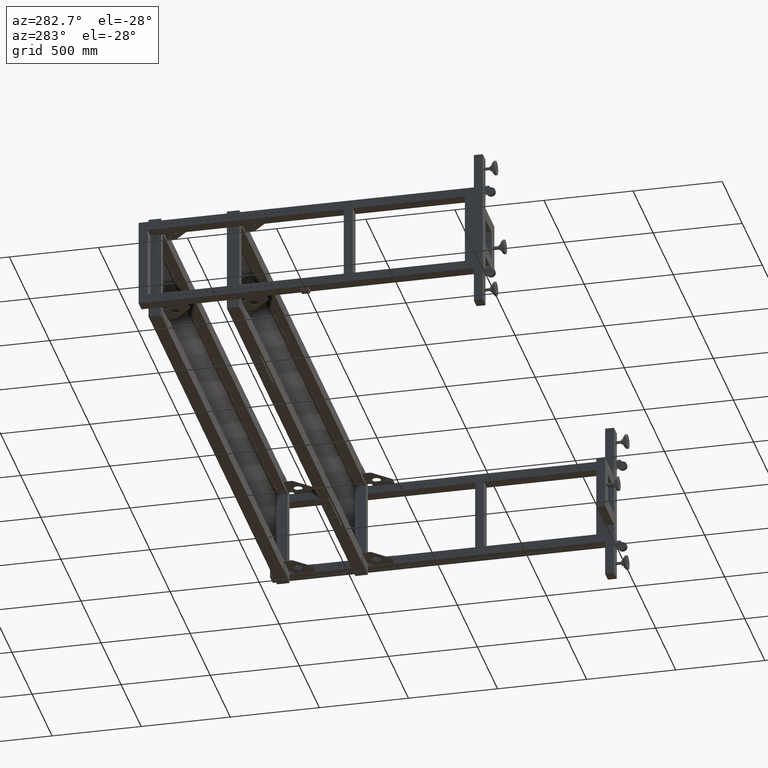
[diagram: clean part render]
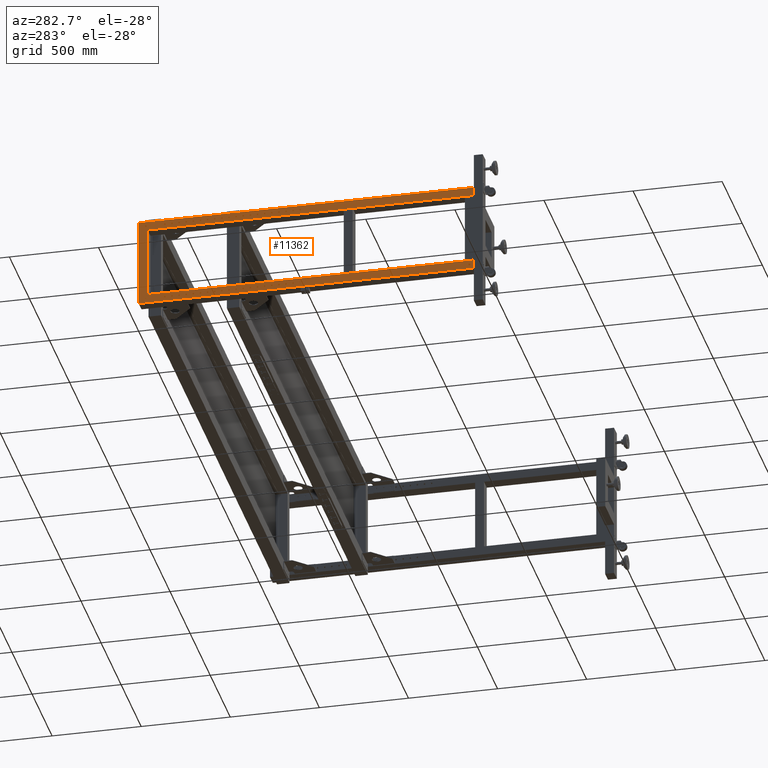
[diagram: same view with one face highlighted and labeled with its STEP entity id]
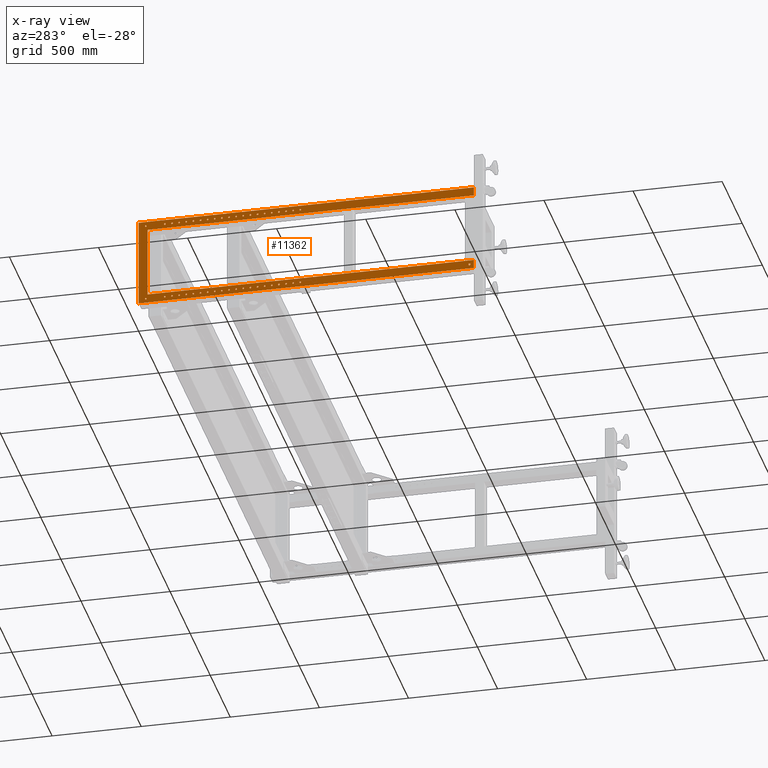
[diagram: x-ray of the same camera — body ghosted, the highlighted face saturated]
A machine part, auxiliary view. The second image highlights one B-rep face of the part: STEP entity #11362.
The next image is the same camera in x-ray: the body ghosted, the highlighted face saturated — about 0% of this face is hidden behind the body in this view.
In plain terms, the highlighted planar face has unit normal (-1, 0, 0).
Its self-contained STEP definition (entity closure, byte-faithful):
#8 = CARTESIAN_POINT ( 'NONE',  ( -1338.172487437185055, 169.4410804020110106, -220.5000000000000000 ) ) ;
#123 = EDGE_CURVE ( 'NONE', #30036, #4125, #12293, .T. ) ;
#201 = VERTEX_POINT ( 'NONE', #59063 ) ;
#203 = CARTESIAN_POINT ( 'NONE',  ( -1338.172487437185055, 133.9410804020111243, 224.9999999999946851 ) ) ;
#273 = ORIENTED_EDGE ( 'NONE', *, *, #68356, .T. ) ;
#470 = DIRECTION ( 'NONE',  ( 1.000000000000000000, 0.000000000000000000, 0.000000000000000000 ) ) ;
#477 = VERTEX_POINT ( 'NONE', #13567 ) ;
#500 = CARTESIAN_POINT ( 'NONE',  ( -1338.172487437185055, 409.4410804020109822, -225.0000000000000000 ) ) ;
#537 = CARTESIAN_POINT ( 'NONE',  ( -1338.172487437185055, 684.9410804020110390, 224.9999999999985789 ) ) ;
#619 = CIRCLE ( 'NONE', #40421, 4.500000000000003553 ) ;
#644 = CARTESIAN_POINT ( 'NONE',  ( -1338.172487437185055, 649.4410804020110390, -225.0000000000000000 ) ) ;
#862 = CARTESIAN_POINT ( 'NONE',  ( -1338.172487437185055, 249.4410804020110675, -225.0000000000000000 ) ) ;
#873 = CIRCLE ( 'NONE', #74090, 4.500000000000059508 ) ;
#1047 = ORIENTED_EDGE ( 'NONE', *, *, #55803, .T. ) ;
#1106 = VERTEX_POINT ( 'NONE', #35927 ) ;
#1171 = CARTESIAN_POINT ( 'NONE',  ( -1338.172487437185055, 169.4410804020110106, -225.0000000000000000 ) ) ;
#1326 = FACE_BOUND ( 'NONE', #47217, .T. ) ;
#1569 = AXIS2_PLACEMENT_3D ( 'NONE', #20671, #21493, #57683 ) ;
#1966 = EDGE_LOOP ( 'NONE', ( #35066, #9277 ) ) ;
#1992 = CARTESIAN_POINT ( 'NONE',  ( -1338.172487437185055, 604.9410804020111527, 224.9999999999980389 ) ) ;
#2071 = CARTESIAN_POINT ( 'NONE',  ( -1338.172487437185055, 849.4410804020111527, 224.9999999999996874 ) ) ;
#2105 = DIRECTION ( 'NONE',  ( 1.000000000000000000, 0.000000000000000000, -2.775557561562890365E-16 ) ) ;
#2282 = VERTEX_POINT ( 'NONE', #65684 ) ;
#2362 = DIRECTION ( 'NONE',  ( 1.000000000000000000, 0.000000000000000000, -2.775557561562890365E-16 ) ) ;
#2367 = EDGE_CURVE ( 'NONE', #19889, #64129, #14582, .T. ) ;
#2449 = ORIENTED_EDGE ( 'NONE', *, *, #50955, .T. ) ;
#2519 = CARTESIAN_POINT ( 'NONE',  ( -1338.172487437185055, 889.4410804020110390, -220.5000000000000000 ) ) ;
#2657 = DIRECTION ( 'NONE',  ( 0.000000000000000000, 1.000000000000000000, 0.000000000000000000 ) ) ;
#2966 = EDGE_CURVE ( 'NONE', #54249, #78164, #6993, .T. ) ;
#3001 = VERTEX_POINT ( 'NONE', #8801 ) ;
#3071 = AXIS2_PLACEMENT_3D ( 'NONE', #70997, #59713, #15896 ) ;
#3090 = AXIS2_PLACEMENT_3D ( 'NONE', #33950, #21527, #9043 ) ;
#3177 = CARTESIAN_POINT ( 'NONE',  ( -1338.172487437185055, 569.4410804020110390, -225.0000000000000000 ) ) ;
#3276 = CARTESIAN_POINT ( 'NONE',  ( -1338.172487437185055, 729.4410804020110390, -220.5000000000000000 ) ) ;
#3387 = AXIS2_PLACEMENT_3D ( 'NONE', #61589, #42303, #24199 ) ;
#3718 = FACE_BOUND ( 'NONE', #38753, .T. ) ;
#3721 = DIRECTION ( 'NONE',  ( 0.000000000000000000, 0.000000000000000000, -1.000000000000000000 ) ) ;
#3736 = EDGE_CURVE ( 'NONE', #75870, #43642, #63199, .T. ) ;
#3895 = DIRECTION ( 'NONE',  ( 0.000000000000000000, 1.000000000000000000, 0.000000000000000000 ) ) ;
#3996 = CIRCLE ( 'NONE', #23280, 4.500000000000003553 ) ;
#3997 = ORIENTED_EDGE ( 'NONE', *, *, #64432, .T. ) ;
#4007 = VERTEX_POINT ( 'NONE', #79267 ) ;
#4018 = CARTESIAN_POINT ( 'NONE',  ( -1338.172487437185964, 986.4410804020109254, 199.9999999999999716 ) ) ;
#4098 = FACE_BOUND ( 'NONE', #14363, .T. ) ;
#4125 = VERTEX_POINT ( 'NONE', #32933 ) ;
#4330 = CARTESIAN_POINT ( 'NONE',  ( -1338.172487437185055, 369.4410804020110959, -225.0000000000000000 ) ) ;
#4385 = DIRECTION ( 'NONE',  ( 0.000000000000000000, 0.000000000000000000, -1.000000000000000000 ) ) ;
#4436 = EDGE_CURVE ( 'NONE', #20437, #37029, #18362, .T. ) ;
#4454 = VERTEX_POINT ( 'NONE', #31646 ) ;
#4471 = AXIS2_PLACEMENT_3D ( 'NONE', #48726, #6089, #49916 ) ;
#4634 = ORIENTED_EDGE ( 'NONE', *, *, #33749, .T. ) ;
#4766 = ORIENTED_EDGE ( 'NONE', *, *, #71607, .T. ) ;
#4876 = CARTESIAN_POINT ( 'NONE',  ( -1338.172487437185055, 529.4410804020111527, -225.0000000000000000 ) ) ;
#4878 = VERTEX_POINT ( 'NONE', #203 ) ;
#4886 = EDGE_CURVE ( 'NONE', #47846, #9957, #53597, .T. ) ;
#4887 = CARTESIAN_POINT ( 'NONE',  ( -1338.172487437185055, 889.4410804020110390, 224.9999999999999716 ) ) ;
#4899 = DIRECTION ( 'NONE',  ( 0.000000000000000000, 0.000000000000000000, -1.000000000000000000 ) ) ;
#4939 = ORIENTED_EDGE ( 'NONE', *, *, #66225, .T. ) ;
#4978 = ORIENTED_EDGE ( 'NONE', *, *, #77461, .T. ) ;
#5147 = EDGE_LOOP ( 'NONE', ( #59577, #54680 ) ) ;
#5154 = CARTESIAN_POINT ( 'NONE',  ( -1338.172487437185055, 129.4410804020110675, -229.5000000000000000 ) ) ;
#5176 = DIRECTION ( 'NONE',  ( 1.000000000000000000, 0.000000000000000000, -2.775557561562890365E-16 ) ) ;
#5198 = VERTEX_POINT ( 'NONE', #1992 ) ;
#5346 = EDGE_CURVE ( 'NONE', #4454, #44022, #54619, .T. ) ;
#5395 = CIRCLE ( 'NONE', #24627, 4.500000000000003553 ) ;
#5424 = EDGE_CURVE ( 'NONE', #5198, #16054, #64911, .T. ) ;
#5441 = EDGE_LOOP ( 'NONE', ( #74301, #79545 ) ) ;
#5454 = DIRECTION ( 'NONE',  ( 0.000000000000000000, 0.000000000000000000, -1.000000000000000000 ) ) ;
#5605 = CARTESIAN_POINT ( 'NONE',  ( -1338.172487437185055, 329.4410804020110390, -229.5000000000000000 ) ) ;
#5868 = DIRECTION ( 'NONE',  ( 0.000000000000000000, 0.000000000000000000, -1.000000000000000000 ) ) ;
#5934 = EDGE_LOOP ( 'NONE', ( #48924, #76030 ) ) ;
#6030 = ORIENTED_EDGE ( 'NONE', *, *, #19462, .T. ) ;
#6050 = EDGE_CURVE ( 'NONE', #78164, #54249, #57250, .T. ) ;
#6089 = DIRECTION ( 'NONE',  ( 1.000000000000000000, 0.000000000000000000, -2.775557561562890365E-16 ) ) ;
#6091 = EDGE_CURVE ( 'NONE', #25734, #13229, #67563, .T. ) ;
#6289 = CIRCLE ( 'NONE', #35792, 4.500000000000003553 ) ;
#6464 = AXIS2_PLACEMENT_3D ( 'NONE', #6515, #37873, #7693 ) ;
#6515 = CARTESIAN_POINT ( 'NONE',  ( -1338.172487437185055, 329.4410804020111527, 224.9999999999960778 ) ) ;
#6993 = CIRCLE ( 'NONE', #35236, 4.500000000000059508 ) ;
#7050 = EDGE_CURVE ( 'NONE', #20714, #78512, #47167, .T. ) ;
#7117 = DIRECTION ( 'NONE',  ( 0.000000000000000000, 0.000000000000000000, -1.000000000000000000 ) ) ;
#7205 = CARTESIAN_POINT ( 'NONE',  ( -1338.172487437185055, 209.4410804020110390, -225.0000000000000000 ) ) ;
#7267 = DIRECTION ( 'NONE',  ( 1.000000000000000000, 0.000000000000000000, -2.775557561562890365E-16 ) ) ;
#7350 = CARTESIAN_POINT ( 'NONE',  ( -1338.172487437185055, 729.4410804020110390, -225.0000000000000000 ) ) ;
#7591 = CARTESIAN_POINT ( 'NONE',  ( -1338.172487437185055, -844.5589195979889610, -250.0000000000000000 ) ) ;
#7693 = DIRECTION ( 'NONE',  ( 0.000000000000000000, 1.000000000000000000, 0.000000000000000000 ) ) ;
#7870 = DIRECTION ( 'NONE',  ( 0.000000000000000000, 0.000000000000000000, -1.000000000000000000 ) ) ;
#7881 = AXIS2_PLACEMENT_3D ( 'NONE', #47002, #40980, #39792 ) ;
#7956 = ORIENTED_EDGE ( 'NONE', *, *, #2966, .T. ) ;
#7964 = CARTESIAN_POINT ( 'NONE',  ( -1338.172487437185055, 409.4410804020110959, 224.9999999999966178 ) ) ;
#8051 = DIRECTION ( 'NONE',  ( 1.000000000000000000, 0.000000000000000000, 0.000000000000000000 ) ) ;
#8204 = ORIENTED_EDGE ( 'NONE', *, *, #22423, .T. ) ;
#8392 = ORIENTED_EDGE ( 'NONE', *, *, #13196, .T. ) ;
#8430 = CARTESIAN_POINT ( 'NONE',  ( -1338.172487437186192, 996.4410804020111527, -225.0000000000000000 ) ) ;
#8713 = CARTESIAN_POINT ( 'NONE',  ( -1338.172487437185055, 849.4410804020110390, -229.5000000000000000 ) ) ;
#8801 = CARTESIAN_POINT ( 'NONE',  ( -1338.172487437185055, 413.9410804020111527, 224.9999999999966178 ) ) ;
#8919 = DIRECTION ( 'NONE',  ( 0.000000000000000000, 0.000000000000000000, -1.000000000000000000 ) ) ;
#8949 = CARTESIAN_POINT ( 'NONE',  ( -1338.172487437185055, 569.4410804020110390, -225.0000000000000000 ) ) ;
#9043 = DIRECTION ( 'NONE',  ( 0.000000000000000000, 0.000000000000000000, -1.000000000000000000 ) ) ;
#9085 = CARTESIAN_POINT ( 'NONE',  ( -1338.172487437185055, 249.4410804020110675, 224.9999999999955094 ) ) ;
#9141 = ORIENTED_EDGE ( 'NONE', *, *, #6091, .T. ) ;
#9165 = VERTEX_POINT ( 'NONE', #46933 ) ;
#9277 = ORIENTED_EDGE ( 'NONE', *, *, #20983, .T. ) ;
#9371 = EDGE_LOOP ( 'NONE', ( #9141, #67661 ) ) ;
#9424 = CARTESIAN_POINT ( 'NONE',  ( -1338.172487437185055, 569.4410804020111527, 224.9999999999977547 ) ) ;
#9464 = AXIS2_PLACEMENT_3D ( 'NONE', #13339, #470, #73305 ) ;
#9560 = EDGE_CURVE ( 'NONE', #58418, #72306, #20216, .T. ) ;
#9594 = DIRECTION ( 'NONE',  ( 0.000000000000000000, 0.000000000000000000, -1.000000000000000000 ) ) ;
#9647 = CARTESIAN_POINT ( 'NONE',  ( -1338.172487437185055, -844.5589195979889610, -200.0000000000000000 ) ) ;
#9669 = EDGE_LOOP ( 'NONE', ( #64002, #52966 ) ) ;
#9739 = DIRECTION ( 'NONE',  ( -1.224646799147351975E-16, 0.000000000000000000, -1.000000000000000000 ) ) ;
#9903 = CARTESIAN_POINT ( 'NONE',  ( -1338.172487437185055, 693.9410804020110390, 224.9999999999985789 ) ) ;
#9954 = AXIS2_PLACEMENT_3D ( 'NONE', #25122, #74227, #8919 ) ;
#9957 = VERTEX_POINT ( 'NONE', #66939 ) ;
#9989 = EDGE_CURVE ( 'NONE', #49539, #24975, #10736, .T. ) ;
#10064 = AXIS2_PLACEMENT_3D ( 'NONE', #40469, #52138, #39685 ) ;
#10462 = CARTESIAN_POINT ( 'NONE',  ( -1338.172487437185055, 129.4410804020110675, 224.9999999999946851 ) ) ;
#10582 = CARTESIAN_POINT ( 'NONE',  ( -1338.172487437185055, 369.4410804020110959, -220.5000000000000000 ) ) ;
#10697 = CARTESIAN_POINT ( 'NONE',  ( -1338.172487437185055, 369.4410804020110959, 224.9999999999963336 ) ) ;
#10717 = ORIENTED_EDGE ( 'NONE', *, *, #60822, .T. ) ;
#10736 = CIRCLE ( 'NONE', #73746, 4.500000000000003553 ) ;
#10779 = CIRCLE ( 'NONE', #44126, 4.500000000000003553 ) ;
#10832 = EDGE_LOOP ( 'NONE', ( #4766, #31293 ) ) ;
#10835 = EDGE_CURVE ( 'NONE', #26218, #56674, #59474, .T. ) ;
#11046 = AXIS2_PLACEMENT_3D ( 'NONE', #75263, #31822, #26574 ) ;
#11362 = ADVANCED_FACE ( 'NONE', ( #32264, #74533, #33082, #76116, #21004, #70100, #68505, #14999, #39540, #64079, #31479, #56039, #19414, #43944, #13400, #62856, #1326, #37930, #76940, #4098, #41492, #16177, #47527, #27834, #40722, #52392, #58011, #45959, #40311, #33462, #70880, #71289, #15772, #64463, #41108, #39919, #65266, #64857, #51974, #53164, #3718, #65645, #28598, #21813 ), #28216, .T. ) ;
#11403 = CARTESIAN_POINT ( 'NONE',  ( -1338.172487437185055, 689.4410804020110390, -225.0000000000000000 ) ) ;
#11533 = EDGE_CURVE ( 'NONE', #52899, #201, #34129, .T. ) ;
#11863 = ORIENTED_EDGE ( 'NONE', *, *, #7050, .T. ) ;
#11876 = CARTESIAN_POINT ( 'NONE',  ( -1338.172487437185055, 284.9410804020111527, 224.9999999999957936 ) ) ;
#12255 = EDGE_LOOP ( 'NONE', ( #46854, #1047 ) ) ;
#12260 = CARTESIAN_POINT ( 'NONE',  ( -1338.172487437185055, 773.9410804020111527, 224.9999999999991473 ) ) ;
#12273 = CARTESIAN_POINT ( 'NONE',  ( -1338.172487437185055, 249.4410804020110675, 224.9999999999955094 ) ) ;
#12293 = CIRCLE ( 'NONE', #57225, 4.500000000000003553 ) ;
#12571 = DIRECTION ( 'NONE',  ( 0.000000000000000000, 0.000000000000000000, 1.000000000000000000 ) ) ;
#12808 = DIRECTION ( 'NONE',  ( 0.000000000000000000, 1.000000000000000000, 0.000000000000000000 ) ) ;
#12817 = VERTEX_POINT ( 'NONE', #39452 ) ;
#12844 = VERTEX_POINT ( 'NONE', #76035 ) ;
#12940 = CIRCLE ( 'NONE', #68181, 4.500000000000059508 ) ;
#13000 = CARTESIAN_POINT ( 'NONE',  ( -1338.172487437185055, 729.4410804020110390, -225.0000000000000000 ) ) ;
#13196 = EDGE_CURVE ( 'NONE', #64129, #19889, #50735, .T. ) ;
#13229 = VERTEX_POINT ( 'NONE', #17130 ) ;
#13242 = DIRECTION ( 'NONE',  ( 1.000000000000000000, 0.000000000000000000, 0.000000000000000000 ) ) ;
#13287 = DIRECTION ( 'NONE',  ( 0.000000000000000000, 0.000000000000000000, -1.000000000000000000 ) ) ;
#13339 = CARTESIAN_POINT ( 'NONE',  ( -1338.172487437185055, 369.4410804020110959, 224.9999999999963336 ) ) ;
#13400 = FACE_BOUND ( 'NONE', #12255, .T. ) ;
#13477 = CIRCLE ( 'NONE', #4471, 4.500000000000003553 ) ;
#13567 = CARTESIAN_POINT ( 'NONE',  ( -1338.172487437185055, 449.4410804020110390, -220.5000000000000000 ) ) ;
#13592 = DIRECTION ( 'NONE',  ( 1.000000000000000000, 0.000000000000000000, -2.775557561562890365E-16 ) ) ;
#13829 = CARTESIAN_POINT ( 'NONE',  ( -1338.172487437185055, 329.4410804020111527, 224.9999999999960778 ) ) ;
#13931 = CARTESIAN_POINT ( 'NONE',  ( -1338.172487437185055, 849.4410804020110390, -225.0000000000000000 ) ) ;
#13948 = EDGE_CURVE ( 'NONE', #15610, #28569, #54105, .T. ) ;
#14079 = DIRECTION ( 'NONE',  ( -1.000000000000000000, -5.551115123125780730E-16, 0.000000000000000000 ) ) ;
#14115 = EDGE_CURVE ( 'NONE', #45276, #35186, #20642, .T. ) ;
#14174 = DIRECTION ( 'NONE',  ( 1.000000000000000000, 0.000000000000000000, 0.000000000000000000 ) ) ;
#14319 = DIRECTION ( 'NONE',  ( 0.000000000000000000, 1.000000000000000000, 0.000000000000000000 ) ) ;
#14363 = EDGE_LOOP ( 'NONE', ( #63530, #62299 ) ) ;
#14418 = ORIENTED_EDGE ( 'NONE', *, *, #21486, .T. ) ;
#14582 = CIRCLE ( 'NONE', #9464, 4.500000000000059508 ) ;
#14806 = ORIENTED_EDGE ( 'NONE', *, *, #25497, .T. ) ;
#14877 = CARTESIAN_POINT ( 'NONE',  ( -1338.172487437185055, 489.4410804020110959, 224.9999999999971863 ) ) ;
#14883 = CIRCLE ( 'NONE', #49563, 5.500000000000087930 ) ;
#14950 = EDGE_CURVE ( 'NONE', #28569, #15610, #69614, .T. ) ;
#14999 = FACE_BOUND ( 'NONE', #52716, .T. ) ;
#15006 = ORIENTED_EDGE ( 'NONE', *, *, #72724, .T. ) ;
#15260 = EDGE_CURVE ( 'NONE', #56769, #2282, #56828, .T. ) ;
#15294 = DIRECTION ( 'NONE',  ( 0.000000000000000000, 1.000000000000000000, 0.000000000000000000 ) ) ;
#15441 = DIRECTION ( 'NONE',  ( 0.000000000000000000, 1.000000000000000000, 0.000000000000000000 ) ) ;
#15610 = VERTEX_POINT ( 'NONE', #62008 ) ;
#15772 = FACE_BOUND ( 'NONE', #10832, .T. ) ;
#15896 = DIRECTION ( 'NONE',  ( 0.000000000000000000, 1.000000000000000000, 0.000000000000000000 ) ) ;
#15912 = EDGE_LOOP ( 'NONE', ( #49258, #41170 ) ) ;
#15917 = CARTESIAN_POINT ( 'NONE',  ( -1338.172487437185055, 529.4410804020111527, 224.9999999999974705 ) ) ;
#16012 = CIRCLE ( 'NONE', #75092, 4.499999999999948486 ) ;
#16031 = VERTEX_POINT ( 'NONE', #55884 ) ;
#16048 = AXIS2_PLACEMENT_3D ( 'NONE', #44856, #26754, #27947 ) ;
#16054 = VERTEX_POINT ( 'NONE', #72843 ) ;
#16067 = AXIS2_PLACEMENT_3D ( 'NONE', #10697, #71877, #41284 ) ;
#16162 = CIRCLE ( 'NONE', #75248, 4.500000000000003553 ) ;
#16177 = FACE_BOUND ( 'NONE', #27325, .T. ) ;
#16316 = DIRECTION ( 'NONE',  ( 0.000000000000000000, 1.000000000000000000, 0.000000000000000000 ) ) ;
#16369 = CARTESIAN_POINT ( 'NONE',  ( -1338.172487437185055, 564.9410804020111527, 224.9999999999977547 ) ) ;
#16503 = ORIENTED_EDGE ( 'NONE', *, *, #18611, .T. ) ;
#16714 = ORIENTED_EDGE ( 'NONE', *, *, #31363, .T. ) ;
#16789 = CARTESIAN_POINT ( 'NONE',  ( -1338.172487437185964, 986.4410804020109254, 248.0000000000000000 ) ) ;
#16931 = VERTEX_POINT ( 'NONE', #3276 ) ;
#17013 = CIRCLE ( 'NONE', #31122, 4.500000000000003553 ) ;
#17066 = CARTESIAN_POINT ( 'NONE',  ( -1338.172487437185055, 653.9410804020111527, 224.9999999999983231 ) ) ;
#17130 = CARTESIAN_POINT ( 'NONE',  ( -1338.172487437185055, 529.4410804020111527, -220.5000000000000000 ) ) ;
#17649 = DIRECTION ( 'NONE',  ( 1.000000000000000000, 0.000000000000000000, -2.775557561562890365E-16 ) ) ;
#17754 = DIRECTION ( 'NONE',  ( 1.000000000000000000, 0.000000000000000000, -2.775557561562895295E-16 ) ) ;
#17920 = ORIENTED_EDGE ( 'NONE', *, *, #49114, .T. ) ;
#18037 = DIRECTION ( 'NONE',  ( 0.000000000000000000, 0.000000000000000000, -1.000000000000000000 ) ) ;
#18278 = EDGE_CURVE ( 'NONE', #64280, #47193, #25209, .T. ) ;
#18350 = DIRECTION ( 'NONE',  ( 1.000000000000000000, 0.000000000000000000, 0.000000000000000000 ) ) ;
#18362 = CIRCLE ( 'NONE', #22261, 4.500000000000003553 ) ;
#18363 = AXIS2_PLACEMENT_3D ( 'NONE', #27865, #45161, #57655 ) ;
#18550 = ORIENTED_EDGE ( 'NONE', *, *, #15260, .T. ) ;
#18611 = EDGE_CURVE ( 'NONE', #32912, #75840, #36816, .T. ) ;
#18634 = DIRECTION ( 'NONE',  ( 0.000000000000000000, 1.000000000000000000, 0.000000000000000000 ) ) ;
#18894 = DIRECTION ( 'NONE',  ( 0.000000000000000000, 0.000000000000000000, -1.000000000000000000 ) ) ;
#18979 = CIRCLE ( 'NONE', #72981, 4.500000000000003553 ) ;
#19020 = DIRECTION ( 'NONE',  ( 0.000000000000000000, 0.000000000000000000, -1.000000000000000000 ) ) ;
#19206 = CARTESIAN_POINT ( 'NONE',  ( -1338.172487437185055, 524.9410804020111527, 224.9999999999974705 ) ) ;
#19252 = EDGE_LOOP ( 'NONE', ( #11863, #53227 ) ) ;
#19322 = DIRECTION ( 'NONE',  ( 1.000000000000000000, 0.000000000000000000, 0.000000000000000000 ) ) ;
#19336 = DIRECTION ( 'NONE',  ( 0.000000000000000000, 0.000000000000000000, -1.000000000000000000 ) ) ;
#19414 = FACE_BOUND ( 'NONE', #47056, .T. ) ;
#19462 = EDGE_CURVE ( 'NONE', #37029, #20437, #64765, .T. ) ;
#19588 = CARTESIAN_POINT ( 'NONE',  ( -1338.172487437185055, 849.4410804020111527, 224.9999999999996874 ) ) ;
#19636 = CARTESIAN_POINT ( 'NONE',  ( -1338.172487437185055, 689.4410804020110390, -220.5000000000000000 ) ) ;
#19728 = CARTESIAN_POINT ( 'NONE',  ( -1338.172487437185055, 129.4410804020110675, 224.9999999999946851 ) ) ;
#19889 = VERTEX_POINT ( 'NONE', #57214 ) ;
#19914 = EDGE_CURVE ( 'NONE', #4125, #30036, #619, .T. ) ;
#20023 = EDGE_CURVE ( 'NONE', #72306, #58418, #13477, .T. ) ;
#20050 = AXIS2_PLACEMENT_3D ( 'NONE', #1171, #2362, #21249 ) ;
#20147 = EDGE_CURVE ( 'NONE', #75840, #32912, #37881, .T. ) ;
#20216 = CIRCLE ( 'NONE', #36932, 4.500000000000003553 ) ;
#20282 = CARTESIAN_POINT ( 'NONE',  ( -1338.172487437185055, 573.9410804020110390, 224.9999999999977547 ) ) ;
#20437 = VERTEX_POINT ( 'NONE', #59895 ) ;
#20493 = VERTEX_POINT ( 'NONE', #68320 ) ;
#20525 = CARTESIAN_POINT ( 'NONE',  ( -1338.172487437185055, 204.9410804020110959, 224.9999999999952252 ) ) ;
#20531 = DIRECTION ( 'NONE',  ( 0.000000000000000000, 1.000000000000000000, 0.000000000000000000 ) ) ;
#20567 = VERTEX_POINT ( 'NONE', #26436 ) ;
#20642 = LINE ( 'NONE', #38745, #51509 ) ;
#20671 = CARTESIAN_POINT ( 'NONE',  ( -1338.172487437186192, 996.4410804020111527, 224.9999999999999716 ) ) ;
#20713 = ORIENTED_EDGE ( 'NONE', *, *, #25193, .T. ) ;
#20714 = VERTEX_POINT ( 'NONE', #59010 ) ;
#20818 = EDGE_LOOP ( 'NONE', ( #60685, #67277 ) ) ;
#20983 = EDGE_CURVE ( 'NONE', #44562, #31010, #77448, .T. ) ;
#21004 = FACE_BOUND ( 'NONE', #33814, .T. ) ;
#21031 = CARTESIAN_POINT ( 'NONE',  ( -1338.172487437185055, 129.4410804020110675, -225.0000000000000000 ) ) ;
#21071 = EDGE_LOOP ( 'NONE', ( #20713, #3997 ) ) ;
#21249 = DIRECTION ( 'NONE',  ( 0.000000000000000000, 0.000000000000000000, -1.000000000000000000 ) ) ;
#21400 = DIRECTION ( 'NONE',  ( 1.000000000000000000, 0.000000000000000000, 0.000000000000000000 ) ) ;
#21425 = DIRECTION ( 'NONE',  ( 0.000000000000000000, 1.000000000000000000, 0.000000000000000000 ) ) ;
#21486 = EDGE_CURVE ( 'NONE', #24975, #49539, #76241, .T. ) ;
#21493 = DIRECTION ( 'NONE',  ( -1.000000000000000000, -5.551115123125780730E-16, 0.000000000000000000 ) ) ;
#21527 = DIRECTION ( 'NONE',  ( 1.000000000000000000, 0.000000000000000000, -2.775557561562890365E-16 ) ) ;
#21706 = VERTEX_POINT ( 'NONE', #22390 ) ;
#21813 = FACE_BOUND ( 'NONE', #32373, .T. ) ;
#21919 = EDGE_LOOP ( 'NONE', ( #31134, #71707 ) ) ;
#22061 = DIRECTION ( 'NONE',  ( -1.000000000000000000, 0.000000000000000000, 1.224646799147353947E-16 ) ) ;
#22149 = DIRECTION ( 'NONE',  ( 1.000000000000000000, 0.000000000000000000, -2.775557561562890365E-16 ) ) ;
#22261 = AXIS2_PLACEMENT_3D ( 'NONE', #37679, #62214, #7117 ) ;
#22321 = CARTESIAN_POINT ( 'NONE',  ( -1338.172487437185055, 529.4410804020111527, 224.9999999999974705 ) ) ;
#22390 = CARTESIAN_POINT ( 'NONE',  ( -1338.172487437185055, 493.9410804020110959, 224.9999999999971863 ) ) ;
#22423 = EDGE_CURVE ( 'NONE', #46073, #34326, #16162, .T. ) ;
#22458 = CARTESIAN_POINT ( 'NONE',  ( -1338.172487437185055, -819.5589195979888473, -225.0000000000000000 ) ) ;
#22633 = ORIENTED_EDGE ( 'NONE', *, *, #24561, .T. ) ;
#22688 = VECTOR ( 'NONE', #65184, 1000.000000000000000 ) ;
#22875 = DIRECTION ( 'NONE',  ( 0.000000000000000000, 0.000000000000000000, 1.000000000000000000 ) ) ;
#23035 = AXIS2_PLACEMENT_3D ( 'NONE', #50643, #37788, #26900 ) ;
#23115 = AXIS2_PLACEMENT_3D ( 'NONE', #52032, #70558, #15441 ) ;
#23155 = CIRCLE ( 'NONE', #35961, 4.499999999999948486 ) ;
#23271 = DIRECTION ( 'NONE',  ( 1.000000000000000000, 0.000000000000000000, -2.775557561562890365E-16 ) ) ;
#23280 = AXIS2_PLACEMENT_3D ( 'NONE', #72587, #42023, #66581 ) ;
#23309 = AXIS2_PLACEMENT_3D ( 'NONE', #50682, #7267, #68814 ) ;
#23528 = CIRCLE ( 'NONE', #67254, 4.499999999999948486 ) ;
#23662 = CARTESIAN_POINT ( 'NONE',  ( -1338.172487437185055, 289.4410804020109822, -225.0000000000000000 ) ) ;
#23672 = CARTESIAN_POINT ( 'NONE',  ( -1338.172487437185055, 209.4410804020110390, -225.0000000000000000 ) ) ;
#23846 = EDGE_LOOP ( 'NONE', ( #71739, #18550 ) ) ;
#23918 = EDGE_LOOP ( 'NONE', ( #67528, #47468 ) ) ;
#23991 = AXIS2_PLACEMENT_3D ( 'NONE', #79419, #55259, #73765 ) ;
#24014 = VERTEX_POINT ( 'NONE', #4018 ) ;
#24018 = AXIS2_PLACEMENT_3D ( 'NONE', #9085, #48377, #2657 ) ;
#24143 = CARTESIAN_POINT ( 'NONE',  ( -1338.172487437185055, 986.4410804020136538, 199.9999999999999716 ) ) ;
#24199 = DIRECTION ( 'NONE',  ( 0.000000000000000000, 1.000000000000000000, 0.000000000000000000 ) ) ;
#24283 = AXIS2_PLACEMENT_3D ( 'NONE', #2071, #56374, #26592 ) ;
#24359 = DIRECTION ( 'NONE',  ( 1.000000000000000000, 0.000000000000000000, -2.775557561562890365E-16 ) ) ;
#24410 = AXIS2_PLACEMENT_3D ( 'NONE', #47628, #71387, #72574 ) ;
#24492 = AXIS2_PLACEMENT_3D ( 'NONE', #10462, #29739, #77655 ) ;
#24503 = VERTEX_POINT ( 'NONE', #45777 ) ;
#24561 = EDGE_CURVE ( 'NONE', #20493, #24014, #28834, .T. ) ;
#24627 = AXIS2_PLACEMENT_3D ( 'NONE', #33388, #26954, #52317 ) ;
#24653 = DIRECTION ( 'NONE',  ( 0.000000000000000000, 0.000000000000000000, -1.000000000000000000 ) ) ;
#24665 = ORIENTED_EDGE ( 'NONE', *, *, #20023, .T. ) ;
#24695 = AXIS2_PLACEMENT_3D ( 'NONE', #12273, #61344, #50048 ) ;
#24758 = VERTEX_POINT ( 'NONE', #69780 ) ;
#24784 = DIRECTION ( 'NONE',  ( 1.000000000000000000, 0.000000000000000000, -2.775557561562890365E-16 ) ) ;
#24920 = VERTEX_POINT ( 'NONE', #48426 ) ;
#24957 = EDGE_LOOP ( 'NONE', ( #74338, #42523 ) ) ;
#24975 = VERTEX_POINT ( 'NONE', #65818 ) ;
#24991 = DIRECTION ( 'NONE',  ( -1.000000000000000000, 0.000000000000000000, 1.224646799147353947E-16 ) ) ;
#25122 = CARTESIAN_POINT ( 'NONE',  ( -1338.172487437185055, 649.4410804020110390, -225.0000000000000000 ) ) ;
#25193 = EDGE_CURVE ( 'NONE', #45724, #76182, #29177, .T. ) ;
#25209 = CIRCLE ( 'NONE', #32892, 4.499999999999948486 ) ;
#25249 = DIRECTION ( 'NONE',  ( 1.000000000000000000, 0.000000000000000000, 0.000000000000000000 ) ) ;
#25310 = CARTESIAN_POINT ( 'NONE',  ( -1338.172487437185055, -844.5589195979888473, 249.9999999999999716 ) ) ;
#25437 = DIRECTION ( 'NONE',  ( 0.000000000000000000, 0.000000000000000000, -1.000000000000000000 ) ) ;
#25497 = EDGE_CURVE ( 'NONE', #16931, #41128, #35674, .T. ) ;
#25690 = EDGE_LOOP ( 'NONE', ( #8392, #65304 ) ) ;
#25734 = VERTEX_POINT ( 'NONE', #29304 ) ;
#25857 = DIRECTION ( 'NONE',  ( 0.000000000000000000, 1.000000000000000000, 0.000000000000000000 ) ) ;
#25959 = ORIENTED_EDGE ( 'NONE', *, *, #64144, .F. ) ;
#25982 = ORIENTED_EDGE ( 'NONE', *, *, #77501, .T. ) ;
#26108 = VECTOR ( 'NONE', #62206, 1000.000000000000000 ) ;
#26198 = DIRECTION ( 'NONE',  ( 0.000000000000000000, 1.000000000000000000, 0.000000000000000000 ) ) ;
#26218 = VERTEX_POINT ( 'NONE', #41290 ) ;
#26436 = CARTESIAN_POINT ( 'NONE',  ( -1338.172487437185055, 289.4410804020109822, -220.5000000000000000 ) ) ;
#26440 = CARTESIAN_POINT ( 'NONE',  ( -1338.172487437185055, 769.4410804020110390, -225.0000000000000000 ) ) ;
#26574 = DIRECTION ( 'NONE',  ( 0.000000000000000000, 1.000000000000000000, 0.000000000000000000 ) ) ;
#26575 = VERTEX_POINT ( 'NONE', #28302 ) ;
#26592 = DIRECTION ( 'NONE',  ( 0.000000000000000000, 1.000000000000000000, 0.000000000000000000 ) ) ;
#26754 = DIRECTION ( 'NONE',  ( 1.000000000000000000, 0.000000000000000000, -2.775557561562890365E-16 ) ) ;
#26800 = EDGE_LOOP ( 'NONE', ( #56712, #56244 ) ) ;
#26872 = VERTEX_POINT ( 'NONE', #2519 ) ;
#26900 = DIRECTION ( 'NONE',  ( 0.000000000000000000, 1.000000000000000000, 0.000000000000000000 ) ) ;
#26954 = DIRECTION ( 'NONE',  ( 1.000000000000000000, 0.000000000000000000, -2.775557561562890365E-16 ) ) ;
#27103 = DIRECTION ( 'NONE',  ( 0.000000000000000000, 1.000000000000000000, 0.000000000000000000 ) ) ;
#27189 = CARTESIAN_POINT ( 'NONE',  ( -1338.172487437186192, 996.4410804020111527, 224.9999999999999716 ) ) ;
#27310 = CARTESIAN_POINT ( 'NONE',  ( -1338.172487437185055, 289.4410804020110959, 224.9999999999957936 ) ) ;
#27325 = EDGE_LOOP ( 'NONE', ( #28022, #47116 ) ) ;
#27441 = EDGE_LOOP ( 'NONE', ( #70272, #16714 ) ) ;
#27442 = CIRCLE ( 'NONE', #31288, 4.499999999999948486 ) ;
#27481 = VERTEX_POINT ( 'NONE', #50473 ) ;
#27520 = CIRCLE ( 'NONE', #68652, 4.499999999999893419 ) ;
#27690 = CARTESIAN_POINT ( 'NONE',  ( -1338.172487437185055, 449.4410804020110390, -229.5000000000000000 ) ) ;
#27717 = AXIS2_PLACEMENT_3D ( 'NONE', #26440, #51000, #45341 ) ;
#27789 = DIRECTION ( 'NONE',  ( 0.000000000000000000, 1.000000000000000000, 0.000000000000000000 ) ) ;
#27810 = CARTESIAN_POINT ( 'NONE',  ( -1338.172487437185055, 649.4410804020110390, 224.9999999999983231 ) ) ;
#27834 = FACE_BOUND ( 'NONE', #9669, .T. ) ;
#27865 = CARTESIAN_POINT ( 'NONE',  ( -1338.172487437185055, 449.4410804020111527, 224.9999999999969020 ) ) ;
#27944 = CIRCLE ( 'NONE', #38227, 4.500000000000059508 ) ;
#27947 = DIRECTION ( 'NONE',  ( 0.000000000000000000, 0.000000000000000000, -1.000000000000000000 ) ) ;
#28022 = ORIENTED_EDGE ( 'NONE', *, *, #41451, .F. ) ;
#28155 = VERTEX_POINT ( 'NONE', #64865 ) ;
#28216 = PLANE ( 'NONE',  #70171 ) ;
#28302 = CARTESIAN_POINT ( 'NONE',  ( -1338.172487437185055, 644.9410804020110390, 224.9999999999983231 ) ) ;
#28569 = VERTEX_POINT ( 'NONE', #19206 ) ;
#28598 = FACE_BOUND ( 'NONE', #20818, .T. ) ;
#28668 = AXIS2_PLACEMENT_3D ( 'NONE', #59985, #17754, #4899 ) ;
#28777 = AXIS2_PLACEMENT_3D ( 'NONE', #23662, #17649, #42569 ) ;
#28810 = EDGE_CURVE ( 'NONE', #34326, #46073, #32134, .T. ) ;
#28834 = LINE ( 'NONE', #16789, #65097 ) ;
#28845 = AXIS2_PLACEMENT_3D ( 'NONE', #74447, #19322, #62359 ) ;
#29114 = CARTESIAN_POINT ( 'NONE',  ( -1338.172487437185964, 1036.441080402011039, 250.0000000000000000 ) ) ;
#29163 = CARTESIAN_POINT ( 'NONE',  ( -1338.172487437185055, 569.4410804020111527, 224.9999999999977547 ) ) ;
#29177 = CIRCLE ( 'NONE', #47173, 4.500000000000003553 ) ;
#29304 = CARTESIAN_POINT ( 'NONE',  ( -1338.172487437185055, 529.4410804020111527, -229.5000000000000000 ) ) ;
#29456 = DIRECTION ( 'NONE',  ( 0.000000000000000000, 1.000000000000000000, 0.000000000000000000 ) ) ;
#29482 = CARTESIAN_POINT ( 'NONE',  ( -1338.172487437186192, 1000.941080402011153, -225.0000000000000000 ) ) ;
#29674 = VERTEX_POINT ( 'NONE', #70612 ) ;
#29739 = DIRECTION ( 'NONE',  ( 1.000000000000000000, 0.000000000000000000, 0.000000000000000000 ) ) ;
#29808 = CARTESIAN_POINT ( 'NONE',  ( -1338.172487437185055, -819.5589195979888473, -219.5000000000000000 ) ) ;
#29818 = CARTESIAN_POINT ( 'NONE',  ( -1338.172487437185055, -844.5589195979889610, -250.0000000000000000 ) ) ;
#29881 = VERTEX_POINT ( 'NONE', #17066 ) ;
#30036 = VERTEX_POINT ( 'NONE', #50389 ) ;
#30084 = EDGE_LOOP ( 'NONE', ( #39082, #41805 ) ) ;
#30436 = CARTESIAN_POINT ( 'NONE',  ( -1338.172487437185055, 213.9410804020110959, 224.9999999999952252 ) ) ;
#30580 = ORIENTED_EDGE ( 'NONE', *, *, #52361, .T. ) ;
#30594 = CARTESIAN_POINT ( 'NONE',  ( -1338.172487437185055, 329.4410804020110390, -225.0000000000000000 ) ) ;
#30607 = EDGE_CURVE ( 'NONE', #60836, #42433, #5395, .T. ) ;
#31010 = VERTEX_POINT ( 'NONE', #12260 ) ;
#31122 = AXIS2_PLACEMENT_3D ( 'NONE', #67072, #31203, #61011 ) ;
#31134 = ORIENTED_EDGE ( 'NONE', *, *, #32621, .T. ) ;
#31182 = EDGE_LOOP ( 'NONE', ( #38023, #51934 ) ) ;
#31203 = DIRECTION ( 'NONE',  ( 1.000000000000000000, 0.000000000000000000, -2.775557561562890365E-16 ) ) ;
#31245 = VERTEX_POINT ( 'NONE', #37551 ) ;
#31288 = AXIS2_PLACEMENT_3D ( 'NONE', #51418, #13242, #57052 ) ;
#31293 = ORIENTED_EDGE ( 'NONE', *, *, #55191, .T. ) ;
#31363 = EDGE_CURVE ( 'NONE', #52873, #24920, #37589, .T. ) ;
#31450 = AXIS2_PLACEMENT_3D ( 'NONE', #22458, #22061, #22875 ) ;
#31479 = FACE_BOUND ( 'NONE', #37737, .T. ) ;
#31646 = CARTESIAN_POINT ( 'NONE',  ( -1338.172487437185055, -819.5589195979888473, -230.5000000000000000 ) ) ;
#31655 = CIRCLE ( 'NONE', #23991, 4.499999999999948486 ) ;
#31706 = ORIENTED_EDGE ( 'NONE', *, *, #61233, .T. ) ;
#31736 = DIRECTION ( 'NONE',  ( -1.000000000000000078E-15, -1.000000000000000000, -0.000000000000000000 ) ) ;
#31822 = DIRECTION ( 'NONE',  ( 1.000000000000000000, 0.000000000000000000, 0.000000000000000000 ) ) ;
#31865 = CARTESIAN_POINT ( 'NONE',  ( -1338.172487437185055, 329.4410804020110390, -225.0000000000000000 ) ) ;
#32115 = LINE ( 'NONE', #24143, #48287 ) ;
#32134 = CIRCLE ( 'NONE', #23309, 4.500000000000003553 ) ;
#32197 = AXIS2_PLACEMENT_3D ( 'NONE', #41689, #78692, #5868 ) ;
#32233 = DIRECTION ( 'NONE',  ( 0.000000000000000000, 0.000000000000000000, -1.000000000000000000 ) ) ;
#32264 = FACE_OUTER_BOUND ( 'NONE', #65285, .T. ) ;
#32373 = EDGE_LOOP ( 'NONE', ( #70080, #15006 ) ) ;
#32402 = AXIS2_PLACEMENT_3D ( 'NONE', #51531, #40261, #27789 ) ;
#32482 = EDGE_CURVE ( 'NONE', #1106, #4007, #3996, .T. ) ;
#32486 = DIRECTION ( 'NONE',  ( 1.000000000000000000, 0.000000000000000000, 0.000000000000000000 ) ) ;
#32621 = EDGE_CURVE ( 'NONE', #29881, #26575, #42583, .T. ) ;
#32892 = AXIS2_PLACEMENT_3D ( 'NONE', #33158, #57697, #44828 ) ;
#32912 = VERTEX_POINT ( 'NONE', #40848 ) ;
#32933 = CARTESIAN_POINT ( 'NONE',  ( -1338.172487437185055, 569.4410804020110390, -229.5000000000000000 ) ) ;
#33082 = FACE_BOUND ( 'NONE', #74154, .T. ) ;
#33143 = CARTESIAN_POINT ( 'NONE',  ( -1338.172487437185055, 373.9410804020111527, 224.9999999999963336 ) ) ;
#33158 = CARTESIAN_POINT ( 'NONE',  ( -1338.172487437186192, 996.4410804020111527, -225.0000000000000000 ) ) ;
#33181 = EDGE_CURVE ( 'NONE', #16031, #12817, #33648, .T. ) ;
#33388 = CARTESIAN_POINT ( 'NONE',  ( -1338.172487437185055, 849.4410804020110390, -225.0000000000000000 ) ) ;
#33459 = DIRECTION ( 'NONE',  ( 1.000000000000000000, 0.000000000000000000, -2.775557561562890365E-16 ) ) ;
#33462 = FACE_BOUND ( 'NONE', #23918, .T. ) ;
#33648 = CIRCLE ( 'NONE', #78649, 4.500000000000059508 ) ;
#33749 = EDGE_CURVE ( 'NONE', #477, #61541, #17013, .T. ) ;
#33814 = EDGE_LOOP ( 'NONE', ( #31706, #4978 ) ) ;
#33851 = CARTESIAN_POINT ( 'NONE',  ( -1338.172487437185055, 609.4410804020111527, 224.9999999999980389 ) ) ;
#33950 = CARTESIAN_POINT ( 'NONE',  ( -1338.172487437185055, 609.4410804020110390, -225.0000000000000000 ) ) ;
#34129 = CIRCLE ( 'NONE', #3387, 4.499999999999948486 ) ;
#34262 = CARTESIAN_POINT ( 'NONE',  ( -1338.172487437185055, -844.5589195979889610, -250.0000000000000000 ) ) ;
#34326 = VERTEX_POINT ( 'NONE', #56833 ) ;
#34413 = CIRCLE ( 'NONE', #48559, 4.499999999999948486 ) ;
#34451 = LINE ( 'NONE', #58988, #50020 ) ;
#34507 = AXIS2_PLACEMENT_3D ( 'NONE', #77278, #22149, #66007 ) ;
#34570 = LINE ( 'NONE', #9647, #22688 ) ;
#34670 = CIRCLE ( 'NONE', #41305, 4.499999999999948486 ) ;
#34915 = CIRCLE ( 'NONE', #78652, 4.500000000000003553 ) ;
#35066 = ORIENTED_EDGE ( 'NONE', *, *, #52461, .T. ) ;
#35103 = EDGE_CURVE ( 'NONE', #43642, #75870, #27442, .T. ) ;
#35186 = VERTEX_POINT ( 'NONE', #25310 ) ;
#35236 = AXIS2_PLACEMENT_3D ( 'NONE', #38953, #51036, #63498 ) ;
#35674 = CIRCLE ( 'NONE', #67804, 4.500000000000003553 ) ;
#35792 = AXIS2_PLACEMENT_3D ( 'NONE', #53854, #23271, #71168 ) ;
#35909 = DIRECTION ( 'NONE',  ( 1.000000000000000000, 0.000000000000000000, -2.775557561562890365E-16 ) ) ;
#35927 = CARTESIAN_POINT ( 'NONE',  ( -1338.172487437185055, 769.4410804020110390, -220.5000000000000000 ) ) ;
#35933 = CARTESIAN_POINT ( 'NONE',  ( -1338.172487437185055, 809.4410804020110390, -225.0000000000000000 ) ) ;
#35961 = AXIS2_PLACEMENT_3D ( 'NONE', #33851, #77715, #21425 ) ;
#36079 = CIRCLE ( 'NONE', #24492, 4.500000000000059508 ) ;
#36088 = CARTESIAN_POINT ( 'NONE',  ( -1338.172487437185055, -844.5589195979889610, -200.0000000000000000 ) ) ;
#36129 = CIRCLE ( 'NONE', #7881, 4.500000000000003553 ) ;
#36741 = CARTESIAN_POINT ( 'NONE',  ( -1338.172487437185055, 769.4410804020110390, 224.9999999999991473 ) ) ;
#36803 = CARTESIAN_POINT ( 'NONE',  ( -1338.172487437185055, -844.5589195979888473, 199.9999999999999716 ) ) ;
#36816 = CIRCLE ( 'NONE', #76619, 4.500000000000059508 ) ;
#36932 = AXIS2_PLACEMENT_3D ( 'NONE', #11403, #35909, #60444 ) ;
#37009 = EDGE_CURVE ( 'NONE', #12817, #16031, #65569, .T. ) ;
#37029 = VERTEX_POINT ( 'NONE', #55976 ) ;
#37238 = EDGE_CURVE ( 'NONE', #29674, #4878, #36079, .T. ) ;
#37287 = CARTESIAN_POINT ( 'NONE',  ( -1338.172487437185055, -844.5589195979888473, 199.9999999999999716 ) ) ;
#37551 = CARTESIAN_POINT ( 'NONE',  ( -1338.172487437185055, 889.4410804020110390, -229.5000000000000000 ) ) ;
#37589 = CIRCLE ( 'NONE', #18363, 4.499999999999948486 ) ;
#37656 = AXIS2_PLACEMENT_3D ( 'NONE', #23672, #5176, #4385 ) ;
#37679 = CARTESIAN_POINT ( 'NONE',  ( -1338.172487437185055, 609.4410804020110390, -225.0000000000000000 ) ) ;
#37737 = EDGE_LOOP ( 'NONE', ( #8204, #59267 ) ) ;
#37788 = DIRECTION ( 'NONE',  ( 1.000000000000000000, 0.000000000000000000, 0.000000000000000000 ) ) ;
#37805 = EDGE_CURVE ( 'NONE', #35186, #43763, #50148, .T. ) ;
#37873 = DIRECTION ( 'NONE',  ( 1.000000000000000000, 0.000000000000000000, 0.000000000000000000 ) ) ;
#37881 = CIRCLE ( 'NONE', #28845, 4.500000000000059508 ) ;
#37930 = FACE_BOUND ( 'NONE', #5934, .T. ) ;
#38023 = ORIENTED_EDGE ( 'NONE', *, *, #44485, .T. ) ;
#38025 = AXIS2_PLACEMENT_3D ( 'NONE', #73235, #60356, #78858 ) ;
#38227 = AXIS2_PLACEMENT_3D ( 'NONE', #7964, #32486, #57458 ) ;
#38358 = DIRECTION ( 'NONE',  ( 1.000000000000000000, 0.000000000000000000, 0.000000000000000000 ) ) ;
#38440 = DIRECTION ( 'NONE',  ( 0.000000000000000000, 0.000000000000000000, -1.000000000000000000 ) ) ;
#38745 = CARTESIAN_POINT ( 'NONE',  ( -1338.172487437185964, 986.4410804020109254, 250.0000000000000000 ) ) ;
#38753 = EDGE_LOOP ( 'NONE', ( #68947, #48707 ) ) ;
#38798 = DIRECTION ( 'NONE',  ( 1.000000000000000000, 0.000000000000000000, 0.000000000000000000 ) ) ;
#38953 = CARTESIAN_POINT ( 'NONE',  ( -1338.172487437185055, 209.4410804020111527, 224.9999999999952252 ) ) ;
#39082 = ORIENTED_EDGE ( 'NONE', *, *, #49907, .T. ) ;
#39109 = EDGE_LOOP ( 'NONE', ( #43816, #79444 ) ) ;
#39151 = EDGE_LOOP ( 'NONE', ( #44318, #63628 ) ) ;
#39160 = EDGE_CURVE ( 'NONE', #62878, #56701, #65937, .T. ) ;
#39330 = ORIENTED_EDGE ( 'NONE', *, *, #19914, .T. ) ;
#39425 = DIRECTION ( 'NONE',  ( 1.000000000000000000, 0.000000000000000000, 0.000000000000000000 ) ) ;
#39431 = CARTESIAN_POINT ( 'NONE',  ( -1338.172487437185055, 489.4410804020110390, -229.5000000000000000 ) ) ;
#39452 = CARTESIAN_POINT ( 'NONE',  ( -1338.172487437185055, 333.9410804020110959, 224.9999999999960778 ) ) ;
#39454 = DIRECTION ( 'NONE',  ( 1.000000000000000000, 0.000000000000000000, -2.775557561562890365E-16 ) ) ;
#39540 = FACE_BOUND ( 'NONE', #21071, .T. ) ;
#39565 = DIRECTION ( 'NONE',  ( 1.000000000000000000, 0.000000000000000000, -2.775557561562890365E-16 ) ) ;
#39685 = DIRECTION ( 'NONE',  ( 0.000000000000000000, 0.000000000000000000, -1.000000000000000000 ) ) ;
#39694 = DIRECTION ( 'NONE',  ( -1.000000000000000000, -5.551115123125780730E-16, 0.000000000000000000 ) ) ;
#39775 = VERTEX_POINT ( 'NONE', #58477 ) ;
#39792 = DIRECTION ( 'NONE',  ( 0.000000000000000000, 0.000000000000000000, -1.000000000000000000 ) ) ;
#39794 = DIRECTION ( 'NONE',  ( 1.000000000000000000, 0.000000000000000000, -2.775557561562890365E-16 ) ) ;
#39919 = FACE_BOUND ( 'NONE', #24957, .T. ) ;
#39985 = CARTESIAN_POINT ( 'NONE',  ( -1338.172487437185055, 649.4410804020110390, -229.5000000000000000 ) ) ;
#40108 = AXIS2_PLACEMENT_3D ( 'NONE', #62432, #67307, #26198 ) ;
#40119 = VERTEX_POINT ( 'NONE', #5605 ) ;
#40237 = AXIS2_PLACEMENT_3D ( 'NONE', #30594, #55918, #13287 ) ;
#40261 = DIRECTION ( 'NONE',  ( 1.000000000000000000, 0.000000000000000000, 0.000000000000000000 ) ) ;
#40311 = FACE_BOUND ( 'NONE', #23846, .T. ) ;
#40315 = DIRECTION ( 'NONE',  ( 1.000000000000000000, 0.000000000000000000, -2.775557561562890365E-16 ) ) ;
#40421 = AXIS2_PLACEMENT_3D ( 'NONE', #8949, #33459, #70508 ) ;
#40469 = CARTESIAN_POINT ( 'NONE',  ( -1338.172487437185055, 169.4410804020110106, -225.0000000000000000 ) ) ;
#40722 = FACE_BOUND ( 'NONE', #19252, .T. ) ;
#40848 = CARTESIAN_POINT ( 'NONE',  ( -1338.172487437185055, 173.9410804020110675, 224.9999999999949409 ) ) ;
#40885 = EDGE_LOOP ( 'NONE', ( #4939, #53230 ) ) ;
#40979 = CARTESIAN_POINT ( 'NONE',  ( -1338.172487437185964, 1036.441080402011039, 248.0000000000000000 ) ) ;
#40980 = DIRECTION ( 'NONE',  ( 1.000000000000000000, 0.000000000000000000, -2.775557561562890365E-16 ) ) ;
#41108 = FACE_BOUND ( 'NONE', #40885, .T. ) ;
#41128 = VERTEX_POINT ( 'NONE', #62495 ) ;
#41131 = AXIS2_PLACEMENT_3D ( 'NONE', #9424, #38798, #45220 ) ;
#41170 = ORIENTED_EDGE ( 'NONE', *, *, #33181, .T. ) ;
#41251 = AXIS2_PLACEMENT_3D ( 'NONE', #22321, #46864, #16316 ) ;
#41284 = DIRECTION ( 'NONE',  ( 0.000000000000000000, 1.000000000000000000, 0.000000000000000000 ) ) ;
#41290 = CARTESIAN_POINT ( 'NONE',  ( -1338.172487437185055, 209.4410804020110390, -229.5000000000000000 ) ) ;
#41305 = AXIS2_PLACEMENT_3D ( 'NONE', #36741, #73364, #18634 ) ;
#41442 = VERTEX_POINT ( 'NONE', #29818 ) ;
#41451 = EDGE_CURVE ( 'NONE', #44022, #4454, #14883, .T. ) ;
#41492 = FACE_BOUND ( 'NONE', #30084, .T. ) ;
#41616 = AXIS2_PLACEMENT_3D ( 'NONE', #56724, #51115, #20531 ) ;
#41643 = EDGE_CURVE ( 'NONE', #24503, #50620, #46972, .T. ) ;
#41689 = CARTESIAN_POINT ( 'NONE',  ( -1338.172487437185055, 129.4410804020110675, -225.0000000000000000 ) ) ;
#41805 = ORIENTED_EDGE ( 'NONE', *, *, #49728, .T. ) ;
#41868 = EDGE_LOOP ( 'NONE', ( #16503, #44250 ) ) ;
#42023 = DIRECTION ( 'NONE',  ( 1.000000000000000000, 0.000000000000000000, -2.775557561562895295E-16 ) ) ;
#42158 = ORIENTED_EDGE ( 'NONE', *, *, #37238, .T. ) ;
#42281 = AXIS2_PLACEMENT_3D ( 'NONE', #27810, #21400, #64440 ) ;
#42303 = DIRECTION ( 'NONE',  ( 1.000000000000000000, 0.000000000000000000, 0.000000000000000000 ) ) ;
#42381 = DIRECTION ( 'NONE',  ( 1.000000000000000000, 0.000000000000000000, -2.775557561562895295E-16 ) ) ;
#42433 = VERTEX_POINT ( 'NONE', #44884 ) ;
#42473 = EDGE_CURVE ( 'NONE', #2282, #56769, #58689, .T. ) ;
#42523 = ORIENTED_EDGE ( 'NONE', *, *, #14950, .T. ) ;
#42569 = DIRECTION ( 'NONE',  ( 0.000000000000000000, 0.000000000000000000, -1.000000000000000000 ) ) ;
#42583 = CIRCLE ( 'NONE', #73382, 4.499999999999948486 ) ;
#42671 = CARTESIAN_POINT ( 'NONE',  ( -1338.172487437185055, 444.9410804020111527, 224.9999999999969020 ) ) ;
#42820 = DIRECTION ( 'NONE',  ( 0.000000000000000000, 0.000000000000000000, -1.000000000000000000 ) ) ;
#42925 = CIRCLE ( 'NONE', #28777, 4.499999999999893419 ) ;
#43187 = CARTESIAN_POINT ( 'NONE',  ( -1338.172487437185055, 164.9410804020111527, 224.9999999999949409 ) ) ;
#43294 = ORIENTED_EDGE ( 'NONE', *, *, #58591, .T. ) ;
#43428 = VERTEX_POINT ( 'NONE', #36088 ) ;
#43460 = ORIENTED_EDGE ( 'NONE', *, *, #123, .T. ) ;
#43642 = VERTEX_POINT ( 'NONE', #9903 ) ;
#43666 = CIRCLE ( 'NONE', #23115, 4.500000000000003553 ) ;
#43763 = VERTEX_POINT ( 'NONE', #36803 ) ;
#43816 = ORIENTED_EDGE ( 'NONE', *, *, #51944, .T. ) ;
#43944 = FACE_BOUND ( 'NONE', #70062, .T. ) ;
#44022 = VERTEX_POINT ( 'NONE', #29808 ) ;
#44126 = AXIS2_PLACEMENT_3D ( 'NONE', #14877, #39425, #57901 ) ;
#44152 = ORIENTED_EDGE ( 'NONE', *, *, #9560, .T. ) ;
#44158 = EDGE_CURVE ( 'NONE', #73461, #62211, #76288, .T. ) ;
#44188 = DIRECTION ( 'NONE',  ( 1.000000000000000000, 0.000000000000000000, -2.775557561562890365E-16 ) ) ;
#44230 = EDGE_CURVE ( 'NONE', #40119, #12844, #27520, .T. ) ;
#44250 = ORIENTED_EDGE ( 'NONE', *, *, #20147, .T. ) ;
#44318 = ORIENTED_EDGE ( 'NONE', *, *, #44230, .T. ) ;
#44485 = EDGE_CURVE ( 'NONE', #75677, #20567, #42925, .T. ) ;
#44524 = VERTEX_POINT ( 'NONE', #55428 ) ;
#44562 = VERTEX_POINT ( 'NONE', #48987 ) ;
#44739 = CIRCLE ( 'NONE', #10064, 4.500000000000003553 ) ;
#44828 = DIRECTION ( 'NONE',  ( 0.000000000000000000, -1.000000000000000000, 0.000000000000000000 ) ) ;
#44856 = CARTESIAN_POINT ( 'NONE',  ( -1338.172487437185055, 289.4410804020109822, -225.0000000000000000 ) ) ;
#44884 = CARTESIAN_POINT ( 'NONE',  ( -1338.172487437185055, 849.4410804020110390, -220.5000000000000000 ) ) ;
#45161 = DIRECTION ( 'NONE',  ( 1.000000000000000000, 0.000000000000000000, 0.000000000000000000 ) ) ;
#45220 = DIRECTION ( 'NONE',  ( 0.000000000000000000, 1.000000000000000000, 0.000000000000000000 ) ) ;
#45276 = VERTEX_POINT ( 'NONE', #29114 ) ;
#45341 = DIRECTION ( 'NONE',  ( 0.000000000000000000, 0.000000000000000000, -1.000000000000000000 ) ) ;
#45342 = EDGE_CURVE ( 'NONE', #41128, #16931, #45610, .T. ) ;
#45361 = ORIENTED_EDGE ( 'NONE', *, *, #9989, .T. ) ;
#45542 = AXIS2_PLACEMENT_3D ( 'NONE', #21031, #39565, #63267 ) ;
#45610 = CIRCLE ( 'NONE', #79052, 4.500000000000003553 ) ;
#45724 = VERTEX_POINT ( 'NONE', #46323 ) ;
#45777 = CARTESIAN_POINT ( 'NONE',  ( -1338.172487437185055, 804.9410804020110390, 224.9999999999994316 ) ) ;
#45959 = FACE_BOUND ( 'NONE', #75944, .T. ) ;
#46073 = VERTEX_POINT ( 'NONE', #39431 ) ;
#46323 = CARTESIAN_POINT ( 'NONE',  ( -1338.172487437185055, 409.4410804020109822, -229.5000000000000000 ) ) ;
#46333 = DIRECTION ( 'NONE',  ( -1.000000000000000000, 0.000000000000000000, 1.224646799147351975E-16 ) ) ;
#46448 = EDGE_CURVE ( 'NONE', #201, #52899, #31655, .T. ) ;
#46854 = ORIENTED_EDGE ( 'NONE', *, *, #4886, .T. ) ;
#46864 = DIRECTION ( 'NONE',  ( 1.000000000000000000, 0.000000000000000000, 0.000000000000000000 ) ) ;
#46867 = AXIS2_PLACEMENT_3D ( 'NONE', #69832, #71009, #14319 ) ;
#46933 = CARTESIAN_POINT ( 'NONE',  ( -1338.172487437185055, 249.4410804020110675, -229.5000000000000000 ) ) ;
#46972 = CIRCLE ( 'NONE', #11046, 4.499999999999948486 ) ;
#47002 = CARTESIAN_POINT ( 'NONE',  ( -1338.172487437185055, 529.4410804020111527, -225.0000000000000000 ) ) ;
#47056 = EDGE_LOOP ( 'NONE', ( #39330, #43460 ) ) ;
#47116 = ORIENTED_EDGE ( 'NONE', *, *, #5346, .F. ) ;
#47167 = CIRCLE ( 'NONE', #66432, 4.499999999999948486 ) ;
#47173 = AXIS2_PLACEMENT_3D ( 'NONE', #54946, #24359, #67418 ) ;
#47193 = VERTEX_POINT ( 'NONE', #52305 ) ;
#47217 = EDGE_LOOP ( 'NONE', ( #56955, #14806 ) ) ;
#47468 = ORIENTED_EDGE ( 'NONE', *, *, #44158, .T. ) ;
#47527 = FACE_BOUND ( 'NONE', #77974, .T. ) ;
#47628 = CARTESIAN_POINT ( 'NONE',  ( -1338.172487437185055, 369.4410804020110959, -225.0000000000000000 ) ) ;
#47846 = VERTEX_POINT ( 'NONE', #39985 ) ;
#48005 = CARTESIAN_POINT ( 'NONE',  ( -1338.172487437185055, 809.4410804020110390, -220.5000000000000000 ) ) ;
#48083 = AXIS2_PLACEMENT_3D ( 'NONE', #644, #49735, #38440 ) ;
#48278 = VERTEX_POINT ( 'NONE', #61563 ) ;
#48287 = VECTOR ( 'NONE', #31736, 1000.000000000000000 ) ;
#48377 = DIRECTION ( 'NONE',  ( 1.000000000000000000, 0.000000000000000000, 0.000000000000000000 ) ) ;
#48426 = CARTESIAN_POINT ( 'NONE',  ( -1338.172487437185055, 453.9410804020110959, 224.9999999999969020 ) ) ;
#48559 = AXIS2_PLACEMENT_3D ( 'NONE', #19588, #25249, #12808 ) ;
#48621 = CARTESIAN_POINT ( 'NONE',  ( -1338.172487437185055, 889.4410804020110390, -225.0000000000000000 ) ) ;
#48707 = ORIENTED_EDGE ( 'NONE', *, *, #46448, .T. ) ;
#48726 = CARTESIAN_POINT ( 'NONE',  ( -1338.172487437185055, 689.4410804020110390, -225.0000000000000000 ) ) ;
#48746 = EDGE_CURVE ( 'NONE', #66772, #44524, #34413, .T. ) ;
#48924 = ORIENTED_EDGE ( 'NONE', *, *, #76740, .T. ) ;
#48987 = CARTESIAN_POINT ( 'NONE',  ( -1338.172487437185055, 764.9410804020111527, 224.9999999999991473 ) ) ;
#49082 = ORIENTED_EDGE ( 'NONE', *, *, #4436, .T. ) ;
#49114 = EDGE_CURVE ( 'NONE', #61541, #477, #18979, .T. ) ;
#49217 = AXIS2_PLACEMENT_3D ( 'NONE', #27189, #39694, #69088 ) ;
#49258 = ORIENTED_EDGE ( 'NONE', *, *, #37009, .T. ) ;
#49291 = CARTESIAN_POINT ( 'NONE',  ( -1338.172487437185055, 449.4410804020110390, -225.0000000000000000 ) ) ;
#49350 = CIRCLE ( 'NONE', #3071, 4.500000000000059508 ) ;
#49539 = VERTEX_POINT ( 'NONE', #48005 ) ;
#49563 = AXIS2_PLACEMENT_3D ( 'NONE', #72921, #24991, #12571 ) ;
#49728 = EDGE_CURVE ( 'NONE', #26872, #31245, #6289, .T. ) ;
#49735 = DIRECTION ( 'NONE',  ( 1.000000000000000000, 0.000000000000000000, -2.775557561562890365E-16 ) ) ;
#49799 = AXIS2_PLACEMENT_3D ( 'NONE', #13931, #24784, #7870 ) ;
#49907 = EDGE_CURVE ( 'NONE', #31245, #26872, #57672, .T. ) ;
#49916 = DIRECTION ( 'NONE',  ( 0.000000000000000000, 0.000000000000000000, -1.000000000000000000 ) ) ;
#50020 = VECTOR ( 'NONE', #3895, 1000.000000000000000 ) ;
#50048 = DIRECTION ( 'NONE',  ( 0.000000000000000000, 1.000000000000000000, 0.000000000000000000 ) ) ;
#50069 = AXIS2_PLACEMENT_3D ( 'NONE', #70920, #58857, #29456 ) ;
#50148 = LINE ( 'NONE', #37287, #26108 ) ;
#50279 = CARTESIAN_POINT ( 'NONE',  ( -1338.172487437185055, 733.9410804020111527, 224.9999999999988631 ) ) ;
#50389 = CARTESIAN_POINT ( 'NONE',  ( -1338.172487437185055, 569.4410804020110390, -220.5000000000000000 ) ) ;
#50414 = CARTESIAN_POINT ( 'NONE',  ( -1338.172487437185055, 689.4410804020110390, -229.5000000000000000 ) ) ;
#50473 = CARTESIAN_POINT ( 'NONE',  ( -1338.172487437185964, 1036.441080402011039, -250.0000000000000000 ) ) ;
#50620 = VERTEX_POINT ( 'NONE', #66578 ) ;
#50643 = CARTESIAN_POINT ( 'NONE',  ( -1338.172487437185055, 889.4410804020110390, 224.9999999999999716 ) ) ;
#50682 = CARTESIAN_POINT ( 'NONE',  ( -1338.172487437185055, 489.4410804020110390, -225.0000000000000000 ) ) ;
#50710 = EDGE_LOOP ( 'NONE', ( #14418, #45361 ) ) ;
#50735 = CIRCLE ( 'NONE', #16067, 4.500000000000059508 ) ;
#50882 = CIRCLE ( 'NONE', #63774, 4.500000000000003553 ) ;
#50891 = ORIENTED_EDGE ( 'NONE', *, *, #77609, .T. ) ;
#50955 = EDGE_CURVE ( 'NONE', #16054, #5198, #23155, .T. ) ;
#51000 = DIRECTION ( 'NONE',  ( 1.000000000000000000, 0.000000000000000000, -2.775557561562895295E-16 ) ) ;
#51036 = DIRECTION ( 'NONE',  ( 1.000000000000000000, 0.000000000000000000, 0.000000000000000000 ) ) ;
#51113 = DIRECTION ( 'NONE',  ( 0.000000000000000000, 1.000000000000000000, 0.000000000000000000 ) ) ;
#51115 = DIRECTION ( 'NONE',  ( 1.000000000000000000, 0.000000000000000000, 0.000000000000000000 ) ) ;
#51320 = DIRECTION ( 'NONE',  ( 1.000000000000000000, 0.000000000000000000, 0.000000000000000000 ) ) ;
#51410 = LINE ( 'NONE', #7591, #63648 ) ;
#51418 = CARTESIAN_POINT ( 'NONE',  ( -1338.172487437185055, 689.4410804020111527, 224.9999999999985789 ) ) ;
#51509 = VECTOR ( 'NONE', #52010, 1000.000000000000000 ) ;
#51531 = CARTESIAN_POINT ( 'NONE',  ( -1338.172487437185055, 689.4410804020111527, 224.9999999999985789 ) ) ;
#51590 = CIRCLE ( 'NONE', #1569, 4.499999999999948486 ) ;
#51792 = CARTESIAN_POINT ( 'NONE',  ( -1338.172487437185055, 244.9410804020111243, 224.9999999999955094 ) ) ;
#51868 = DIRECTION ( 'NONE',  ( 1.000000000000000000, 0.000000000000000000, 0.000000000000000000 ) ) ;
#51934 = ORIENTED_EDGE ( 'NONE', *, *, #56000, .T. ) ;
#51944 = EDGE_CURVE ( 'NONE', #74643, #39775, #78519, .T. ) ;
#51958 = DIRECTION ( 'NONE',  ( 0.000000000000000000, 1.000000000000000000, 0.000000000000000000 ) ) ;
#51974 = FACE_BOUND ( 'NONE', #21919, .T. ) ;
#52010 = DIRECTION ( 'NONE',  ( 0.000000000000000000, -1.000000000000000000, 0.000000000000000000 ) ) ;
#52032 = CARTESIAN_POINT ( 'NONE',  ( -1338.172487437185055, 489.4410804020110959, 224.9999999999971863 ) ) ;
#52138 = DIRECTION ( 'NONE',  ( 1.000000000000000000, 0.000000000000000000, -2.775557561562890365E-16 ) ) ;
#52156 = EDGE_CURVE ( 'NONE', #63264, #73650, #61850, .T. ) ;
#52305 = CARTESIAN_POINT ( 'NONE',  ( -1338.172487437186192, 991.9410804020110390, -225.0000000000000000 ) ) ;
#52317 = DIRECTION ( 'NONE',  ( 0.000000000000000000, 0.000000000000000000, -1.000000000000000000 ) ) ;
#52361 = EDGE_CURVE ( 'NONE', #24758, #64287, #65714, .T. ) ;
#52371 = CARTESIAN_POINT ( 'NONE',  ( -1338.172487437186192, 991.9410804020110390, 224.9999999999999716 ) ) ;
#52392 = FACE_BOUND ( 'NONE', #65207, .T. ) ;
#52461 = EDGE_CURVE ( 'NONE', #31010, #44562, #34670, .T. ) ;
#52554 = ORIENTED_EDGE ( 'NONE', *, *, #14115, .F. ) ;
#52556 = CIRCLE ( 'NONE', #42281, 4.499999999999948486 ) ;
#52602 = CARTESIAN_POINT ( 'NONE',  ( -1338.172487437186192, 1000.941080402011153, 224.9999999999999716 ) ) ;
#52716 = EDGE_LOOP ( 'NONE', ( #30580, #43294 ) ) ;
#52873 = VERTEX_POINT ( 'NONE', #42671 ) ;
#52899 = VERTEX_POINT ( 'NONE', #50279 ) ;
#52966 = ORIENTED_EDGE ( 'NONE', *, *, #18278, .F. ) ;
#53034 = EDGE_CURVE ( 'NONE', #62211, #73461, #12940, .T. ) ;
#53164 = FACE_BOUND ( 'NONE', #26800, .T. ) ;
#53227 = ORIENTED_EDGE ( 'NONE', *, *, #61455, .T. ) ;
#53230 = ORIENTED_EDGE ( 'NONE', *, *, #73691, .T. ) ;
#53248 = CIRCLE ( 'NONE', #45542, 4.500000000000003553 ) ;
#53393 = DIRECTION ( 'NONE',  ( 0.000000000000000000, 0.000000000000000000, 1.000000000000000000 ) ) ;
#53597 = CIRCLE ( 'NONE', #9954, 4.500000000000003553 ) ;
#53854 = CARTESIAN_POINT ( 'NONE',  ( -1338.172487437185055, 889.4410804020110390, -225.0000000000000000 ) ) ;
#53926 = DIRECTION ( 'NONE',  ( 1.000000000000000000, 0.000000000000000000, -2.775557561562890365E-16 ) ) ;
#54105 = CIRCLE ( 'NONE', #41251, 4.499999999999948486 ) ;
#54249 = VERTEX_POINT ( 'NONE', #20525 ) ;
#54577 = CIRCLE ( 'NONE', #16048, 4.499999999999893419 ) ;
#54619 = CIRCLE ( 'NONE', #31450, 5.500000000000087930 ) ;
#54655 = AXIS2_PLACEMENT_3D ( 'NONE', #7205, #44188, #18894 ) ;
#54680 = ORIENTED_EDGE ( 'NONE', *, *, #52156, .T. ) ;
#54728 = DIRECTION ( 'NONE',  ( 1.000000000000000000, 0.000000000000000000, 0.000000000000000000 ) ) ;
#54854 = CIRCLE ( 'NONE', #72844, 4.499999999999893419 ) ;
#54946 = CARTESIAN_POINT ( 'NONE',  ( -1338.172487437185055, 409.4410804020109822, -225.0000000000000000 ) ) ;
#55191 = EDGE_CURVE ( 'NONE', #48278, #3001, #49350, .T. ) ;
#55259 = DIRECTION ( 'NONE',  ( 1.000000000000000000, 0.000000000000000000, 0.000000000000000000 ) ) ;
#55428 = CARTESIAN_POINT ( 'NONE',  ( -1338.172487437185055, 844.9410804020111527, 224.9999999999996874 ) ) ;
#55803 = EDGE_CURVE ( 'NONE', #9957, #47846, #71239, .T. ) ;
#55884 = CARTESIAN_POINT ( 'NONE',  ( -1338.172487437185055, 324.9410804020110959, 224.9999999999960778 ) ) ;
#55918 = DIRECTION ( 'NONE',  ( 1.000000000000000000, 0.000000000000000000, -2.775557561562890365E-16 ) ) ;
#55976 = CARTESIAN_POINT ( 'NONE',  ( -1338.172487437185055, 609.4410804020110390, -220.5000000000000000 ) ) ;
#56000 = EDGE_CURVE ( 'NONE', #20567, #75677, #54577, .T. ) ;
#56039 = FACE_BOUND ( 'NONE', #9371, .T. ) ;
#56244 = ORIENTED_EDGE ( 'NONE', *, *, #3736, .T. ) ;
#56374 = DIRECTION ( 'NONE',  ( 1.000000000000000000, 0.000000000000000000, 0.000000000000000000 ) ) ;
#56444 = CIRCLE ( 'NONE', #23035, 4.499999999999948486 ) ;
#56674 = VERTEX_POINT ( 'NONE', #74464 ) ;
#56701 = VERTEX_POINT ( 'NONE', #52602 ) ;
#56712 = ORIENTED_EDGE ( 'NONE', *, *, #35103, .T. ) ;
#56724 = CARTESIAN_POINT ( 'NONE',  ( -1338.172487437185055, 289.4410804020110959, 224.9999999999957936 ) ) ;
#56769 = VERTEX_POINT ( 'NONE', #51792 ) ;
#56828 = CIRCLE ( 'NONE', #24695, 4.500000000000059508 ) ;
#56833 = CARTESIAN_POINT ( 'NONE',  ( -1338.172487437185055, 489.4410804020110390, -220.5000000000000000 ) ) ;
#56929 = CIRCLE ( 'NONE', #40237, 4.499999999999893419 ) ;
#56955 = ORIENTED_EDGE ( 'NONE', *, *, #45342, .T. ) ;
#57052 = DIRECTION ( 'NONE',  ( 0.000000000000000000, 1.000000000000000000, 0.000000000000000000 ) ) ;
#57214 = CARTESIAN_POINT ( 'NONE',  ( -1338.172487437185055, 364.9410804020110959, 224.9999999999963336 ) ) ;
#57225 = AXIS2_PLACEMENT_3D ( 'NONE', #3177, #39794, #9594 ) ;
#57250 = CIRCLE ( 'NONE', #38025, 4.500000000000059508 ) ;
#57458 = DIRECTION ( 'NONE',  ( 0.000000000000000000, 1.000000000000000000, 0.000000000000000000 ) ) ;
#57557 = EDGE_CURVE ( 'NONE', #39775, #74643, #53248, .T. ) ;
#57655 = DIRECTION ( 'NONE',  ( 0.000000000000000000, 1.000000000000000000, 0.000000000000000000 ) ) ;
#57672 = CIRCLE ( 'NONE', #75656, 4.500000000000003553 ) ;
#57683 = DIRECTION ( 'NONE',  ( 0.000000000000000000, 1.000000000000000000, 0.000000000000000000 ) ) ;
#57697 = DIRECTION ( 'NONE',  ( -1.000000000000000000, -5.551115123125780730E-16, 0.000000000000000000 ) ) ;
#57898 = ORIENTED_EDGE ( 'NONE', *, *, #6050, .T. ) ;
#57901 = DIRECTION ( 'NONE',  ( 0.000000000000000000, 1.000000000000000000, 0.000000000000000000 ) ) ;
#58011 = FACE_BOUND ( 'NONE', #41868, .T. ) ;
#58143 = DIRECTION ( 'NONE',  ( 0.000000000000000000, 1.000000000000000000, 0.000000000000000000 ) ) ;
#58374 = EDGE_CURVE ( 'NONE', #41442, #43428, #51410, .T. ) ;
#58418 = VERTEX_POINT ( 'NONE', #19636 ) ;
#58442 = EDGE_CURVE ( 'NONE', #61278, #68940, #62427, .T. ) ;
#58477 = CARTESIAN_POINT ( 'NONE',  ( -1338.172487437185055, 129.4410804020110675, -220.5000000000000000 ) ) ;
#58562 = ORIENTED_EDGE ( 'NONE', *, *, #61638, .F. ) ;
#58591 = EDGE_CURVE ( 'NONE', #64287, #24758, #50882, .T. ) ;
#58689 = CIRCLE ( 'NONE', #24018, 4.500000000000059508 ) ;
#58857 = DIRECTION ( 'NONE',  ( 1.000000000000000000, 0.000000000000000000, 0.000000000000000000 ) ) ;
#58988 = CARTESIAN_POINT ( 'NONE',  ( -1338.172487437185055, -844.5589195979889610, -250.0000000000000000 ) ) ;
#59010 = CARTESIAN_POINT ( 'NONE',  ( -1338.172487437185055, 893.9410804020111527, 224.9999999999999716 ) ) ;
#59063 = CARTESIAN_POINT ( 'NONE',  ( -1338.172487437185055, 724.9410804020111527, 224.9999999999988631 ) ) ;
#59267 = ORIENTED_EDGE ( 'NONE', *, *, #28810, .T. ) ;
#59444 = DIRECTION ( 'NONE',  ( 0.000000000000000000, 0.000000000000000000, 1.000000000000000000 ) ) ;
#59474 = CIRCLE ( 'NONE', #37656, 4.500000000000003553 ) ;
#59577 = ORIENTED_EDGE ( 'NONE', *, *, #67423, .T. ) ;
#59688 = CARTESIAN_POINT ( 'NONE',  ( -1338.172487437185055, 853.9410804020111527, 224.9999999999996874 ) ) ;
#59713 = DIRECTION ( 'NONE',  ( 1.000000000000000000, 0.000000000000000000, 0.000000000000000000 ) ) ;
#59725 = DIRECTION ( 'NONE',  ( 1.000000000000000000, 0.000000000000000000, 0.000000000000000000 ) ) ;
#59895 = CARTESIAN_POINT ( 'NONE',  ( -1338.172487437185055, 609.4410804020110390, -229.5000000000000000 ) ) ;
#59985 = CARTESIAN_POINT ( 'NONE',  ( -1338.172487437185055, 809.4410804020110390, -225.0000000000000000 ) ) ;
#60356 = DIRECTION ( 'NONE',  ( 1.000000000000000000, 0.000000000000000000, 0.000000000000000000 ) ) ;
#60444 = DIRECTION ( 'NONE',  ( 0.000000000000000000, 0.000000000000000000, -1.000000000000000000 ) ) ;
#60473 = DIRECTION ( 'NONE',  ( 1.000000000000000000, 0.000000000000000000, -2.775557561562895295E-16 ) ) ;
#60476 = DIRECTION ( 'NONE',  ( 0.000000000000000000, 0.000000000000000000, -1.000000000000000000 ) ) ;
#60525 = DIRECTION ( 'NONE',  ( 0.000000000000000000, 1.000000000000000000, 0.000000000000000000 ) ) ;
#60564 = DIRECTION ( 'NONE',  ( 1.000000000000000000, 0.000000000000000000, -2.775557561562890365E-16 ) ) ;
#60685 = ORIENTED_EDGE ( 'NONE', *, *, #64382, .T. ) ;
#60822 = EDGE_CURVE ( 'NONE', #68940, #61278, #44739, .T. ) ;
#60836 = VERTEX_POINT ( 'NONE', #8713 ) ;
#60952 = CARTESIAN_POINT ( 'NONE',  ( -1338.172487437185055, 293.9410804020111527, 224.9999999999957936 ) ) ;
#61011 = DIRECTION ( 'NONE',  ( 0.000000000000000000, 0.000000000000000000, -1.000000000000000000 ) ) ;
#61233 = EDGE_CURVE ( 'NONE', #9165, #65008, #69223, .T. ) ;
#61278 = VERTEX_POINT ( 'NONE', #8 ) ;
#61344 = DIRECTION ( 'NONE',  ( 1.000000000000000000, 0.000000000000000000, 0.000000000000000000 ) ) ;
#61455 = EDGE_CURVE ( 'NONE', #78512, #20714, #56444, .T. ) ;
#61541 = VERTEX_POINT ( 'NONE', #27690 ) ;
#61563 = CARTESIAN_POINT ( 'NONE',  ( -1338.172487437185055, 404.9410804020111527, 224.9999999999966178 ) ) ;
#61589 = CARTESIAN_POINT ( 'NONE',  ( -1338.172487437185055, 729.4410804020110390, 224.9999999999988631 ) ) ;
#61638 = EDGE_CURVE ( 'NONE', #27481, #45276, #65128, .T. ) ;
#61850 = CIRCLE ( 'NONE', #41131, 4.499999999999948486 ) ;
#61955 = AXIS2_PLACEMENT_3D ( 'NONE', #15917, #51320, #58143 ) ;
#62008 = CARTESIAN_POINT ( 'NONE',  ( -1338.172487437185055, 533.9410804020110390, 224.9999999999974705 ) ) ;
#62171 = DIRECTION ( 'NONE',  ( 0.000000000000000000, 1.000000000000000000, 0.000000000000000000 ) ) ;
#62206 = DIRECTION ( 'NONE',  ( 0.000000000000000000, 0.000000000000000000, -1.000000000000000000 ) ) ;
#62211 = VERTEX_POINT ( 'NONE', #60952 ) ;
#62214 = DIRECTION ( 'NONE',  ( 1.000000000000000000, 0.000000000000000000, -2.775557561562890365E-16 ) ) ;
#62299 = ORIENTED_EDGE ( 'NONE', *, *, #78312, .T. ) ;
#62359 = DIRECTION ( 'NONE',  ( 0.000000000000000000, 1.000000000000000000, 0.000000000000000000 ) ) ;
#62410 = CIRCLE ( 'NONE', #27717, 4.500000000000003553 ) ;
#62427 = CIRCLE ( 'NONE', #20050, 4.500000000000003553 ) ;
#62432 = CARTESIAN_POINT ( 'NONE',  ( -1338.172487437185055, 809.4410804020111527, 224.9999999999994316 ) ) ;
#62495 = CARTESIAN_POINT ( 'NONE',  ( -1338.172487437185055, 729.4410804020110390, -229.5000000000000000 ) ) ;
#62832 = EDGE_CURVE ( 'NONE', #26575, #29881, #52556, .T. ) ;
#62856 = FACE_BOUND ( 'NONE', #78860, .T. ) ;
#62878 = VERTEX_POINT ( 'NONE', #52371 ) ;
#63199 = CIRCLE ( 'NONE', #32402, 4.499999999999948486 ) ;
#63264 = VERTEX_POINT ( 'NONE', #16369 ) ;
#63267 = DIRECTION ( 'NONE',  ( 0.000000000000000000, 0.000000000000000000, -1.000000000000000000 ) ) ;
#63284 = EDGE_CURVE ( 'NONE', #41442, #27481, #34451, .T. ) ;
#63498 = DIRECTION ( 'NONE',  ( 0.000000000000000000, 1.000000000000000000, 0.000000000000000000 ) ) ;
#63530 = ORIENTED_EDGE ( 'NONE', *, *, #30607, .T. ) ;
#63581 = EDGE_CURVE ( 'NONE', #24920, #52873, #68119, .T. ) ;
#63628 = ORIENTED_EDGE ( 'NONE', *, *, #66041, .T. ) ;
#63648 = VECTOR ( 'NONE', #75954, 1000.000000000000000 ) ;
#63774 = AXIS2_PLACEMENT_3D ( 'NONE', #4330, #70726, #42820 ) ;
#63973 = DIRECTION ( 'NONE',  ( 0.000000000000000000, -1.000000000000000000, 0.000000000000000000 ) ) ;
#64002 = ORIENTED_EDGE ( 'NONE', *, *, #66089, .F. ) ;
#64079 = FACE_BOUND ( 'NONE', #76344, .T. ) ;
#64129 = VERTEX_POINT ( 'NONE', #33143 ) ;
#64144 = EDGE_CURVE ( 'NONE', #56701, #62878, #51590, .T. ) ;
#64173 = VECTOR ( 'NONE', #59444, 1000.000000000000000 ) ;
#64280 = VERTEX_POINT ( 'NONE', #29482 ) ;
#64287 = VERTEX_POINT ( 'NONE', #10582 ) ;
#64382 = EDGE_CURVE ( 'NONE', #50620, #24503, #69632, .T. ) ;
#64432 = EDGE_CURVE ( 'NONE', #76182, #45724, #34915, .T. ) ;
#64440 = DIRECTION ( 'NONE',  ( 0.000000000000000000, 1.000000000000000000, 0.000000000000000000 ) ) ;
#64463 = FACE_BOUND ( 'NONE', #27441, .T. ) ;
#64765 = CIRCLE ( 'NONE', #3090, 4.500000000000003553 ) ;
#64857 = FACE_BOUND ( 'NONE', #77208, .T. ) ;
#64865 = CARTESIAN_POINT ( 'NONE',  ( -1338.172487437185055, 484.9410804020110959, 224.9999999999972147 ) ) ;
#64911 = CIRCLE ( 'NONE', #46867, 4.499999999999948486 ) ;
#65008 = VERTEX_POINT ( 'NONE', #67028 ) ;
#65035 = AXIS2_PLACEMENT_3D ( 'NONE', #4876, #53926, #72048 ) ;
#65097 = VECTOR ( 'NONE', #53393, 1000.000000000000000 ) ;
#65128 = LINE ( 'NONE', #40979, #64173 ) ;
#65184 = DIRECTION ( 'NONE',  ( 0.000000000000000000, 1.000000000000000000, 0.000000000000000000 ) ) ;
#65207 = EDGE_LOOP ( 'NONE', ( #25982, #42158 ) ) ;
#65266 = FACE_BOUND ( 'NONE', #5147, .T. ) ;
#65285 = EDGE_LOOP ( 'NONE', ( #50891, #22633, #273, #65629, #52554, #58562, #72179, #78451 ) ) ;
#65304 = ORIENTED_EDGE ( 'NONE', *, *, #2367, .T. ) ;
#65569 = CIRCLE ( 'NONE', #6464, 4.500000000000059508 ) ;
#65629 = ORIENTED_EDGE ( 'NONE', *, *, #37805, .F. ) ;
#65645 = FACE_BOUND ( 'NONE', #1966, .T. ) ;
#65684 = CARTESIAN_POINT ( 'NONE',  ( -1338.172487437185055, 253.9410804020111243, 224.9999999999955094 ) ) ;
#65714 = CIRCLE ( 'NONE', #24410, 4.500000000000003553 ) ;
#65818 = CARTESIAN_POINT ( 'NONE',  ( -1338.172487437185055, 809.4410804020110390, -229.5000000000000000 ) ) ;
#65937 = CIRCLE ( 'NONE', #49217, 4.499999999999948486 ) ;
#66007 = DIRECTION ( 'NONE',  ( 0.000000000000000000, 0.000000000000000000, -1.000000000000000000 ) ) ;
#66041 = EDGE_CURVE ( 'NONE', #12844, #40119, #56929, .T. ) ;
#66089 = EDGE_CURVE ( 'NONE', #47193, #64280, #23528, .T. ) ;
#66225 = EDGE_CURVE ( 'NONE', #21706, #28155, #10779, .T. ) ;
#66282 = CIRCLE ( 'NONE', #54655, 4.500000000000003553 ) ;
#66432 = AXIS2_PLACEMENT_3D ( 'NONE', #4887, #78104, #27103 ) ;
#66443 = CARTESIAN_POINT ( 'NONE',  ( -1338.172487437185055, 769.4410804020110390, 224.9999999999991473 ) ) ;
#66578 = CARTESIAN_POINT ( 'NONE',  ( -1338.172487437185055, 813.9410804020110390, 224.9999999999994316 ) ) ;
#66581 = DIRECTION ( 'NONE',  ( 0.000000000000000000, 0.000000000000000000, -1.000000000000000000 ) ) ;
#66772 = VERTEX_POINT ( 'NONE', #59688 ) ;
#66939 = CARTESIAN_POINT ( 'NONE',  ( -1338.172487437185055, 649.4410804020110390, -220.5000000000000000 ) ) ;
#67028 = CARTESIAN_POINT ( 'NONE',  ( -1338.172487437185055, 249.4410804020110675, -220.5000000000000000 ) ) ;
#67072 = CARTESIAN_POINT ( 'NONE',  ( -1338.172487437185055, 449.4410804020110390, -225.0000000000000000 ) ) ;
#67254 = AXIS2_PLACEMENT_3D ( 'NONE', #8430, #14079, #63973 ) ;
#67277 = ORIENTED_EDGE ( 'NONE', *, *, #41643, .T. ) ;
#67307 = DIRECTION ( 'NONE',  ( 1.000000000000000000, 0.000000000000000000, 0.000000000000000000 ) ) ;
#67418 = DIRECTION ( 'NONE',  ( 0.000000000000000000, 0.000000000000000000, -1.000000000000000000 ) ) ;
#67423 = EDGE_CURVE ( 'NONE', #73650, #63264, #16012, .T. ) ;
#67528 = ORIENTED_EDGE ( 'NONE', *, *, #53034, .T. ) ;
#67563 = CIRCLE ( 'NONE', #65035, 4.500000000000003553 ) ;
#67661 = ORIENTED_EDGE ( 'NONE', *, *, #74591, .T. ) ;
#67715 = DIRECTION ( 'NONE',  ( 1.000000000000000000, 0.000000000000000000, -2.775557561562890365E-16 ) ) ;
#67787 = ORIENTED_EDGE ( 'NONE', *, *, #5424, .T. ) ;
#67794 = CIRCLE ( 'NONE', #49799, 4.500000000000003553 ) ;
#67804 = AXIS2_PLACEMENT_3D ( 'NONE', #7350, #42381, #19020 ) ;
#68119 = CIRCLE ( 'NONE', #50069, 4.499999999999948486 ) ;
#68181 = AXIS2_PLACEMENT_3D ( 'NONE', #27310, #51868, #15294 ) ;
#68320 = CARTESIAN_POINT ( 'NONE',  ( -1338.172487437185055, 986.4410804020136538, -200.0000000000000284 ) ) ;
#68321 = EDGE_CURVE ( 'NONE', #56674, #26218, #66282, .T. ) ;
#68356 = EDGE_CURVE ( 'NONE', #24014, #43763, #32115, .T. ) ;
#68505 = FACE_BOUND ( 'NONE', #39151, .T. ) ;
#68652 = AXIS2_PLACEMENT_3D ( 'NONE', #31865, #2105, #25437 ) ;
#68814 = DIRECTION ( 'NONE',  ( 0.000000000000000000, 0.000000000000000000, -1.000000000000000000 ) ) ;
#68940 = VERTEX_POINT ( 'NONE', #71754 ) ;
#68947 = ORIENTED_EDGE ( 'NONE', *, *, #11533, .T. ) ;
#69088 = DIRECTION ( 'NONE',  ( 0.000000000000000000, 1.000000000000000000, 0.000000000000000000 ) ) ;
#69223 = CIRCLE ( 'NONE', #34507, 4.499999999999893419 ) ;
#69298 = CARTESIAN_POINT ( 'NONE',  ( -1338.172487437185055, 169.4410804020111243, 224.9999999999949409 ) ) ;
#69614 = CIRCLE ( 'NONE', #61955, 4.499999999999948486 ) ;
#69632 = CIRCLE ( 'NONE', #40108, 4.499999999999948486 ) ;
#69698 = CARTESIAN_POINT ( 'NONE',  ( -1338.172487437185055, 489.4410804020110390, -225.0000000000000000 ) ) ;
#69753 = AXIS2_PLACEMENT_3D ( 'NONE', #66443, #54728, #78479 ) ;
#69780 = CARTESIAN_POINT ( 'NONE',  ( -1338.172487437185055, 369.4410804020110959, -229.5000000000000000 ) ) ;
#69832 = CARTESIAN_POINT ( 'NONE',  ( -1338.172487437185055, 609.4410804020111527, 224.9999999999980389 ) ) ;
#70062 = EDGE_LOOP ( 'NONE', ( #49082, #6030 ) ) ;
#70080 = ORIENTED_EDGE ( 'NONE', *, *, #48746, .T. ) ;
#70100 = FACE_BOUND ( 'NONE', #31182, .T. ) ;
#70171 = AXIS2_PLACEMENT_3D ( 'NONE', #34262, #46333, #9739 ) ;
#70272 = ORIENTED_EDGE ( 'NONE', *, *, #63581, .T. ) ;
#70508 = DIRECTION ( 'NONE',  ( 0.000000000000000000, 0.000000000000000000, -1.000000000000000000 ) ) ;
#70558 = DIRECTION ( 'NONE',  ( 1.000000000000000000, 0.000000000000000000, 0.000000000000000000 ) ) ;
#70563 = CIRCLE ( 'NONE', #24283, 4.499999999999948486 ) ;
#70612 = CARTESIAN_POINT ( 'NONE',  ( -1338.172487437185055, 124.9410804020111243, 224.9999999999946851 ) ) ;
#70726 = DIRECTION ( 'NONE',  ( 1.000000000000000000, 0.000000000000000000, -2.775557561562890365E-16 ) ) ;
#70880 = FACE_BOUND ( 'NONE', #15912, .T. ) ;
#70920 = CARTESIAN_POINT ( 'NONE',  ( -1338.172487437185055, 449.4410804020111527, 224.9999999999969020 ) ) ;
#70997 = CARTESIAN_POINT ( 'NONE',  ( -1338.172487437185055, 409.4410804020110959, 224.9999999999966178 ) ) ;
#71009 = DIRECTION ( 'NONE',  ( 1.000000000000000000, 0.000000000000000000, 0.000000000000000000 ) ) ;
#71168 = DIRECTION ( 'NONE',  ( 0.000000000000000000, 0.000000000000000000, -1.000000000000000000 ) ) ;
#71239 = CIRCLE ( 'NONE', #48083, 4.500000000000003553 ) ;
#71289 = FACE_BOUND ( 'NONE', #25690, .T. ) ;
#71387 = DIRECTION ( 'NONE',  ( 1.000000000000000000, 0.000000000000000000, -2.775557561562890365E-16 ) ) ;
#71396 = CARTESIAN_POINT ( 'NONE',  ( -1338.172487437185055, 289.4410804020109822, -229.5000000000000000 ) ) ;
#71607 = EDGE_CURVE ( 'NONE', #3001, #48278, #27944, .T. ) ;
#71707 = ORIENTED_EDGE ( 'NONE', *, *, #62832, .T. ) ;
#71739 = ORIENTED_EDGE ( 'NONE', *, *, #42473, .T. ) ;
#71754 = CARTESIAN_POINT ( 'NONE',  ( -1338.172487437185055, 169.4410804020110106, -229.5000000000000000 ) ) ;
#71877 = DIRECTION ( 'NONE',  ( 1.000000000000000000, 0.000000000000000000, 0.000000000000000000 ) ) ;
#72048 = DIRECTION ( 'NONE',  ( 0.000000000000000000, 0.000000000000000000, -1.000000000000000000 ) ) ;
#72179 = ORIENTED_EDGE ( 'NONE', *, *, #63284, .F. ) ;
#72306 = VERTEX_POINT ( 'NONE', #50414 ) ;
#72574 = DIRECTION ( 'NONE',  ( 0.000000000000000000, 0.000000000000000000, -1.000000000000000000 ) ) ;
#72587 = CARTESIAN_POINT ( 'NONE',  ( -1338.172487437185055, 769.4410804020110390, -225.0000000000000000 ) ) ;
#72724 = EDGE_CURVE ( 'NONE', #44524, #66772, #70563, .T. ) ;
#72843 = CARTESIAN_POINT ( 'NONE',  ( -1338.172487437185055, 613.9410804020111527, 224.9999999999980389 ) ) ;
#72844 = AXIS2_PLACEMENT_3D ( 'NONE', #862, #39454, #19336 ) ;
#72921 = CARTESIAN_POINT ( 'NONE',  ( -1338.172487437185055, -819.5589195979888473, -225.0000000000000000 ) ) ;
#72981 = AXIS2_PLACEMENT_3D ( 'NONE', #49291, #60564, #5454 ) ;
#73235 = CARTESIAN_POINT ( 'NONE',  ( -1338.172487437185055, 209.4410804020111527, 224.9999999999952252 ) ) ;
#73305 = DIRECTION ( 'NONE',  ( 0.000000000000000000, 1.000000000000000000, 0.000000000000000000 ) ) ;
#73364 = DIRECTION ( 'NONE',  ( 1.000000000000000000, 0.000000000000000000, 0.000000000000000000 ) ) ;
#73382 = AXIS2_PLACEMENT_3D ( 'NONE', #73474, #18350, #62171 ) ;
#73461 = VERTEX_POINT ( 'NONE', #11876 ) ;
#73474 = CARTESIAN_POINT ( 'NONE',  ( -1338.172487437185055, 649.4410804020110390, 224.9999999999983231 ) ) ;
#73650 = VERTEX_POINT ( 'NONE', #20282 ) ;
#73691 = EDGE_CURVE ( 'NONE', #28155, #21706, #43666, .T. ) ;
#73746 = AXIS2_PLACEMENT_3D ( 'NONE', #35933, #60473, #24653 ) ;
#73765 = DIRECTION ( 'NONE',  ( 0.000000000000000000, 1.000000000000000000, 0.000000000000000000 ) ) ;
#74090 = AXIS2_PLACEMENT_3D ( 'NONE', #19728, #8051, #51113 ) ;
#74154 = EDGE_LOOP ( 'NONE', ( #10717, #74815 ) ) ;
#74227 = DIRECTION ( 'NONE',  ( 1.000000000000000000, 0.000000000000000000, -2.775557561562890365E-16 ) ) ;
#74301 = ORIENTED_EDGE ( 'NONE', *, *, #10835, .T. ) ;
#74338 = ORIENTED_EDGE ( 'NONE', *, *, #13948, .T. ) ;
#74447 = CARTESIAN_POINT ( 'NONE',  ( -1338.172487437185055, 169.4410804020111243, 224.9999999999949409 ) ) ;
#74464 = CARTESIAN_POINT ( 'NONE',  ( -1338.172487437185055, 209.4410804020110390, -220.5000000000000000 ) ) ;
#74533 = FACE_BOUND ( 'NONE', #39109, .T. ) ;
#74591 = EDGE_CURVE ( 'NONE', #13229, #25734, #36129, .T. ) ;
#74643 = VERTEX_POINT ( 'NONE', #5154 ) ;
#74815 = ORIENTED_EDGE ( 'NONE', *, *, #58442, .T. ) ;
#75092 = AXIS2_PLACEMENT_3D ( 'NONE', #29163, #59725, #60525 ) ;
#75248 = AXIS2_PLACEMENT_3D ( 'NONE', #69698, #40315, #3721 ) ;
#75263 = CARTESIAN_POINT ( 'NONE',  ( -1338.172487437185055, 809.4410804020111527, 224.9999999999994316 ) ) ;
#75656 = AXIS2_PLACEMENT_3D ( 'NONE', #48621, #13592, #18037 ) ;
#75677 = VERTEX_POINT ( 'NONE', #71396 ) ;
#75840 = VERTEX_POINT ( 'NONE', #43187 ) ;
#75870 = VERTEX_POINT ( 'NONE', #537 ) ;
#75944 = EDGE_LOOP ( 'NONE', ( #57898, #7956 ) ) ;
#75954 = DIRECTION ( 'NONE',  ( 1.224646799147351975E-16, 0.000000000000000000, 1.000000000000000000 ) ) ;
#76030 = ORIENTED_EDGE ( 'NONE', *, *, #32482, .T. ) ;
#76035 = CARTESIAN_POINT ( 'NONE',  ( -1338.172487437185055, 329.4410804020110390, -220.5000000000000000 ) ) ;
#76116 = FACE_BOUND ( 'NONE', #5441, .T. ) ;
#76182 = VERTEX_POINT ( 'NONE', #79313 ) ;
#76241 = CIRCLE ( 'NONE', #28668, 4.500000000000003553 ) ;
#76288 = CIRCLE ( 'NONE', #41616, 4.500000000000059508 ) ;
#76344 = EDGE_LOOP ( 'NONE', ( #17920, #4634 ) ) ;
#76619 = AXIS2_PLACEMENT_3D ( 'NONE', #69298, #14174, #51958 ) ;
#76740 = EDGE_CURVE ( 'NONE', #4007, #1106, #62410, .T. ) ;
#76940 = FACE_BOUND ( 'NONE', #50710, .T. ) ;
#77208 = EDGE_LOOP ( 'NONE', ( #2449, #67787 ) ) ;
#77278 = CARTESIAN_POINT ( 'NONE',  ( -1338.172487437185055, 249.4410804020110675, -225.0000000000000000 ) ) ;
#77448 = CIRCLE ( 'NONE', #69753, 4.499999999999948486 ) ;
#77461 = EDGE_CURVE ( 'NONE', #65008, #9165, #54854, .T. ) ;
#77501 = EDGE_CURVE ( 'NONE', #4878, #29674, #873, .T. ) ;
#77609 = EDGE_CURVE ( 'NONE', #43428, #20493, #34570, .T. ) ;
#77655 = DIRECTION ( 'NONE',  ( 0.000000000000000000, 1.000000000000000000, 0.000000000000000000 ) ) ;
#77715 = DIRECTION ( 'NONE',  ( 1.000000000000000000, 0.000000000000000000, 0.000000000000000000 ) ) ;
#77974 = EDGE_LOOP ( 'NONE', ( #78945, #25959 ) ) ;
#78104 = DIRECTION ( 'NONE',  ( 1.000000000000000000, 0.000000000000000000, 0.000000000000000000 ) ) ;
#78164 = VERTEX_POINT ( 'NONE', #30436 ) ;
#78259 = CARTESIAN_POINT ( 'NONE',  ( -1338.172487437185055, 884.9410804020111527, 224.9999999999999716 ) ) ;
#78312 = EDGE_CURVE ( 'NONE', #42433, #60836, #67794, .T. ) ;
#78451 = ORIENTED_EDGE ( 'NONE', *, *, #58374, .T. ) ;
#78479 = DIRECTION ( 'NONE',  ( 0.000000000000000000, 1.000000000000000000, 0.000000000000000000 ) ) ;
#78512 = VERTEX_POINT ( 'NONE', #78259 ) ;
#78519 = CIRCLE ( 'NONE', #32197, 4.500000000000003553 ) ;
#78649 = AXIS2_PLACEMENT_3D ( 'NONE', #13829, #38358, #25857 ) ;
#78652 = AXIS2_PLACEMENT_3D ( 'NONE', #500, #67715, #32233 ) ;
#78692 = DIRECTION ( 'NONE',  ( 1.000000000000000000, 0.000000000000000000, -2.775557561562890365E-16 ) ) ;
#78858 = DIRECTION ( 'NONE',  ( 0.000000000000000000, 1.000000000000000000, 0.000000000000000000 ) ) ;
#78860 = EDGE_LOOP ( 'NONE', ( #24665, #44152 ) ) ;
#78945 = ORIENTED_EDGE ( 'NONE', *, *, #39160, .F. ) ;
#78990 = DIRECTION ( 'NONE',  ( 1.000000000000000000, 0.000000000000000000, -2.775557561562895295E-16 ) ) ;
#79052 = AXIS2_PLACEMENT_3D ( 'NONE', #13000, #78990, #60476 ) ;
#79267 = CARTESIAN_POINT ( 'NONE',  ( -1338.172487437185055, 769.4410804020110390, -229.5000000000000000 ) ) ;
#79313 = CARTESIAN_POINT ( 'NONE',  ( -1338.172487437185055, 409.4410804020109822, -220.5000000000000000 ) ) ;
#79419 = CARTESIAN_POINT ( 'NONE',  ( -1338.172487437185055, 729.4410804020110390, 224.9999999999988631 ) ) ;
#79444 = ORIENTED_EDGE ( 'NONE', *, *, #57557, .T. ) ;
#79545 = ORIENTED_EDGE ( 'NONE', *, *, #68321, .T. ) ;